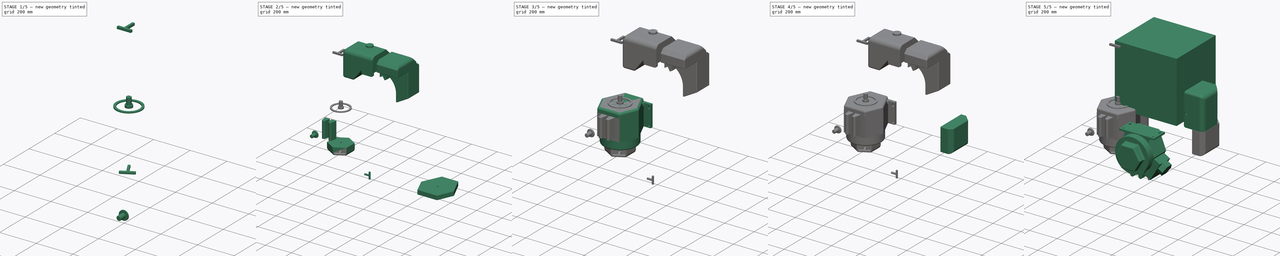
[diagram: build sequence overview — one tinted view per stage of 5, left to right]
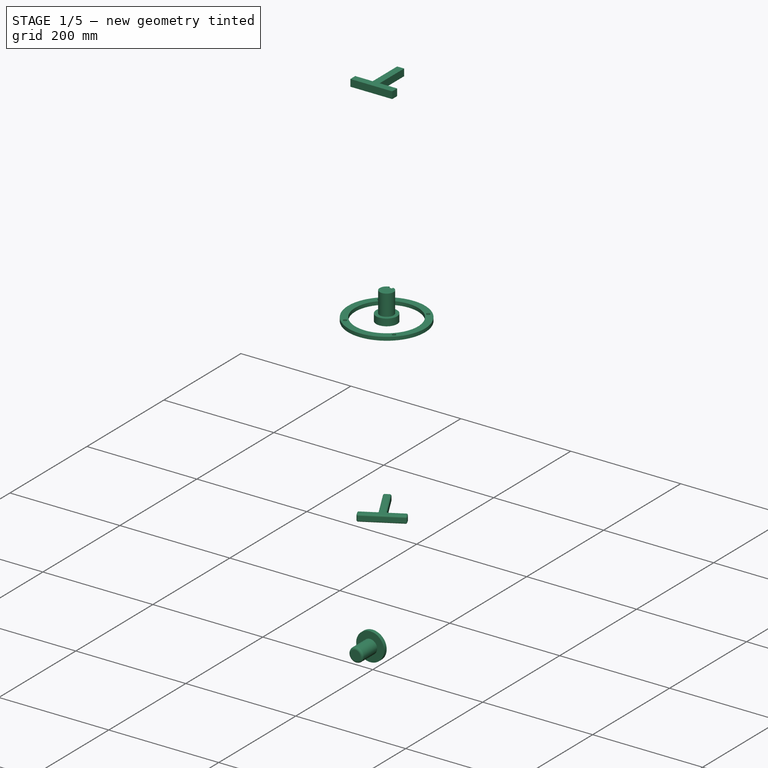
[diagram: stage 1 of 5 — iso view after this stage's code; geometry added in this stage tinted green]
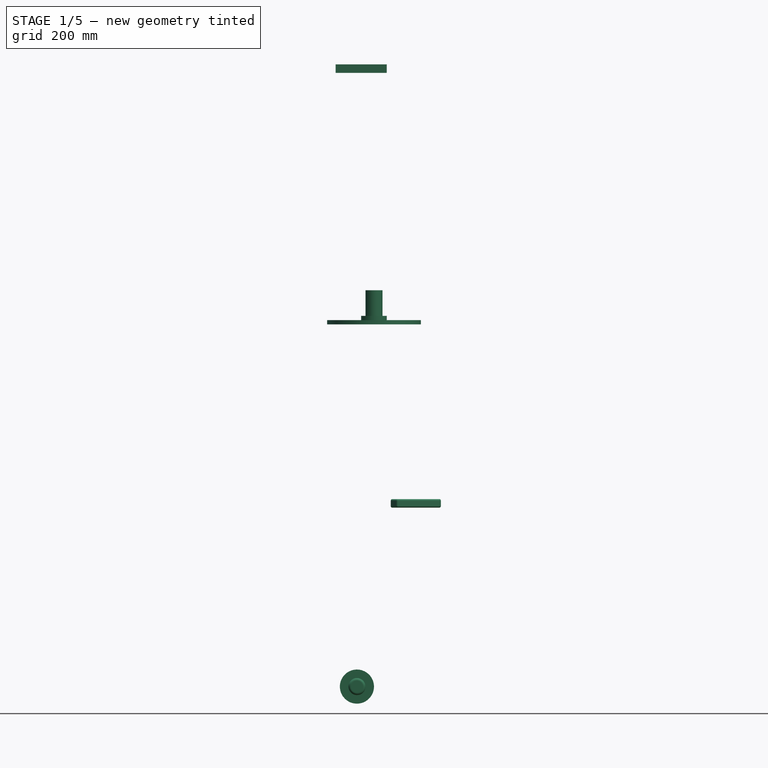
[diagram: stage 1 of 5 — front view after this stage's code; geometry added in this stage tinted green]
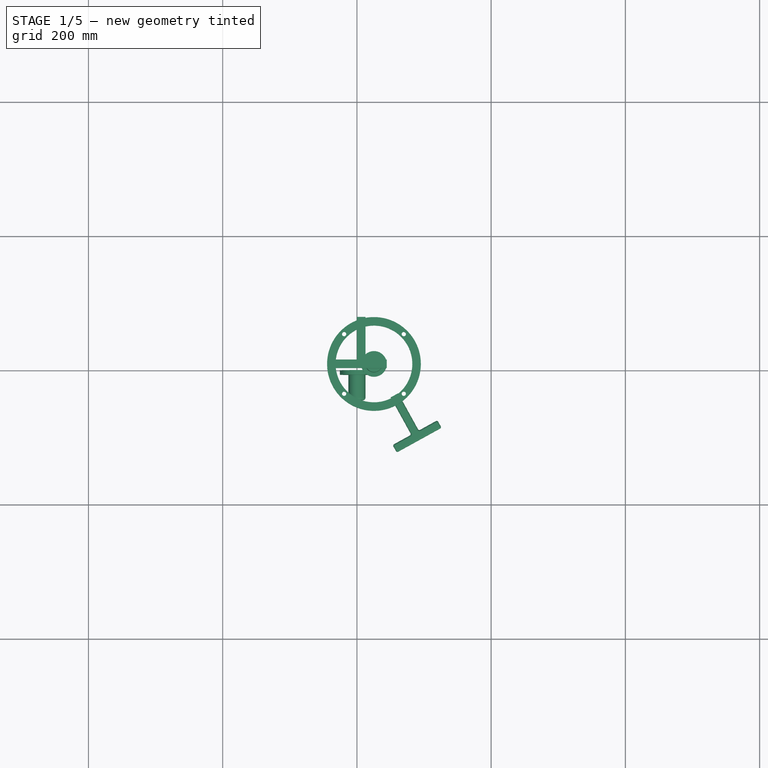
[diagram: stage 1 of 5 — top view after this stage's code; geometry added in this stage tinted green]
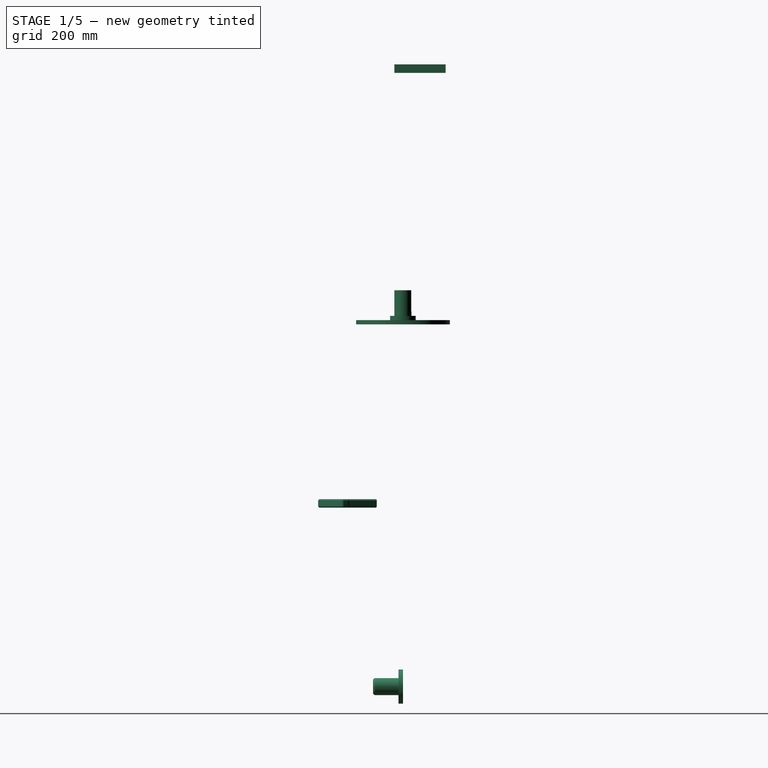
[diagram: stage 1 of 5 — right view after this stage's code; geometry added in this stage tinted green]
FCSTD DOCUMENT  (FreeCAD 0.16R6712 (Git))
Label: Xp16hp
License: All rights reserved
LicenseURL: http://en.wikipedia.org/wiki/All_rights_reserved
objects: App::FeaturePython×26, Sketcher::SketchObject×21, PartDesign::Pad×18, Part::FeaturePython×12, PartDesign::Fillet×9, Part::Feature×9, Part::Compound×5, Part::Fillet×5, Part::Cylinder×5, PartDesign::Chamfer×4, Part::Box×3, PartDesign::Pocket×2, PartDesign::Revolution×1, Part::MultiFuse×1
note: 116 computed .brp shape members not serialized (recipe doc carries the construction recipe); baked Part::Feature solids carry a one-line shape summary decoded from their .brp

FEATURE [Sketcher::SketchObject] Sketch
  Placement = pos=(177.8,0,0) rot=(0.57735,0.57735,0.57735;2.0944rad)
  sketch-geometry (7):
    g0: LineSegment [constr] StartX=0 StartY=127 StartZ=0 EndX=500 EndY=127 EndZ=0
    g1: LineSegment StartX=0 StartY=127 StartZ=0 EndX=0 EndY=114.3 EndZ=0
    g2: LineSegment StartX=0 StartY=114.3 StartZ=0 EndX=38.1 EndY=114.3 EndZ=0
    g3: LineSegment StartX=0 StartY=127 StartZ=0 EndX=50.8 EndY=127 EndZ=0
    g4: LineSegment StartX=38.1 StartY=114.3 StartZ=0 EndX=38.1 EndY=107.95 EndZ=0
    g5: LineSegment StartX=38.1 StartY=107.95 StartZ=0 EndX=50.8 EndY=107.95 EndZ=0
    g6: LineSegment StartX=50.8 StartY=107.95 StartZ=0 EndX=50.8 EndY=127 EndZ=0
  constraints (23):
    c: Horizontal(g0)
    c: PointOnObject(g0,g-2)
    c: DistanceY(g-1,g0) = 127
    c: Coincident(g1,g0)
    c: PointOnObject(g1,g-2)
    c: Coincident(g1,g2)
    c: Horizontal(g2)
    c: PointOnObject(g3,g0)
    c: Coincident(g3,g0)
    c: Horizontal(g3)
    c: DistanceY(g1,g0) = 12.7
    c: DistanceX(g2,g2) = 38.1
    c: Coincident(g4,g2)
    c: Vertical(g4)
    c: Coincident(g5,g4)
    c: Horizontal(g5)
    c: Coincident(g6,g5)
    c: PointOnObject(g6,g0)
    c: Vertical(g6)
    c: Coincident(g6,g3)
    c: DistanceY(g4,g4) = 6.35
    c: DistanceX(g5,g5) = 12.7
    c: DistanceX(g0,g0) = 500
FEATURE [PartDesign::Revolution] Revolution  label="Output Shaft Revolve"
  Angle = 360
  Axis = (0,500,0)
  Base = (177.8,0,127)
  Placement = pos=(177.8,0,0) rot=(0.57735,0.57735,0.57735;2.0944rad)
  ReferenceAxis = -> Sketch [Axis0]
  Reversed = true
  Sketch = -> Sketch
FEATURE [Sketcher::SketchObject] Sketch001
  ExternalGeometry = -> [Revolution]
  Placement = pos=(177.8,0,0) rot=(-0.57735,-0.57735,0.57735;4.18879rad)
  Support = -> Revolution [Face1]
  sketch-geometry (4):
    g0: LineSegment StartX=-139.7 StartY=3.175 StartZ=0 EndX=-139.7 EndY=-3.175 EndZ=0
    g1: LineSegment StartX=-139.7 StartY=-3.175 StartZ=0 EndX=-136.093 EndY=-3.175 EndZ=0
    g2: LineSegment StartX=-136.093 StartY=-3.175 StartZ=0 EndX=-136.093 EndY=3.175 EndZ=0
    g3: LineSegment StartX=-136.093 StartY=3.175 StartZ=0 EndX=-139.7 EndY=3.175 EndZ=0
  constraints (12):
    c: Vertical(g0)
    c: Tangent(g0,g-3)
    c: Coincident(g1,g0)
    c: Horizontal(g1)
    c: Coincident(g2,g1)
    c: Vertical(g2)
    c: Coincident(g3,g2)
    c: Coincident(g3,g0)
    c: Horizontal(g3)
    c: Symmetric(g0,g0,g-1)
    c: DistanceY(g2,g2) = 6.35
    c: DistanceX(g3,g3) = 3.6068
FEATURE [PartDesign::Pocket] Pocket  label="Output Shaft with Keyway"
  Length = 31.75
  Placement = pos=(177.8,0,0) rot=(0.57735,0.57735,0.57735;2.0944rad)
  Sketch = -> Sketch001
  Type = 0
  UpToFace = -> Revolution [Face1]
FEATURE [App::FeaturePython] planeConstraint03  label="mnt pnts front to back"  # a2plus constraint (typed FeaturePython)
  Object1 = Clone013
  Object2 = Clone004
  SubElement1 = Face6
  SubElement2 = Face8
  Type = plane
  directionConstraint = 0
  offset = 19.05
FEATURE [App::FeaturePython] planeConstraint04  label="tank mount points vert"  # a2plus constraint (typed FeaturePython)
  Object1 = Clone013
  Object2 = Clone004
  SubElement1 = Face1
  SubElement2 = Face4
  Type = plane
  directionConstraint = 0
  offset = 0
FEATURE [App::FeaturePython] planeConstraint05  label="planeConstraint05_tank mount points"  # a2plus constraint (typed FeaturePython)
  Object1 = Clone013
  Object2 = Clone004
  SubElement1 = Face10
  SubElement2 = Vertex10
  Type = plane
  directionConstraint = 0
  offset = -82.55
FEATURE [App::FeaturePython] planeConstraint06  label="cyl head cap position"  # a2plus constraint (typed FeaturePython)
  Object1 = Pad001001
  Object2 = Clone004
  SubElement1 = Face5
  SubElement2 = Face5
  Type = plane
  directionConstraint = 1
  offset = -50.8
FEATURE [App::FeaturePython] planeConstraint07  label="planeConstraint07_cylinder head"  # a2plus constraint (typed FeaturePython)
  Object1 = Pad001001
  Object2 = Clone004
  SubElement1 = Face2
  SubElement2 = Face8
  Type = plane
  directionConstraint = 0
  offset = 19.05
FEATURE [App::FeaturePython] planeConstraint08  # a2plus constraint (typed FeaturePython)
  Object1 = Pad001001
  Object2 = Clone004
  SubElement1 = Face1
  SubElement2 = Vertex10
  Type = plane
  directionConstraint = 0
  offset = -25.4
FEATURE [App::FeaturePython] planeConstraint12  label="xyl head cap to cyl head"  # a2plus constraint (typed FeaturePython)
  Object1 = Pad002001
  Object2 = Pad001001
  SubElement1 = Face7
  SubElement2 = Face5
  Type = plane
  directionConstraint = 0
  offset = 0
FEATURE [App::FeaturePython] planeConstraint13  label="cyl head cap vert"  # a2plus constraint (typed FeaturePython)
  Object1 = Pad002001
  Object2 = Pad001001
  SubElement1 = Face5
  SubElement2 = Face1
  Type = plane
  directionConstraint = 0
  offset = 50.8
FEATURE [App::FeaturePython] planeConstraint14  label="cyl head cap fronto back"  # a2plus constraint (typed FeaturePython)
  Object1 = Pad001001
  Object2 = Pad002001
  SubElement1 = Face4
  SubElement2 = Vertex1
  Type = plane
  directionConstraint = 0
  offset = -6.35
FEATURE [Part::Cylinder] Cylinder003  label="fuel tank breather base"
  Angle = 360
  Height = 6.604
  Placement = pos=(0,0,-508) rot=(1,0,0;1.5708rad)
  Radius = 25.4
FEATURE [Part::Cylinder] Cylinder004  label="Cylinder"
  Angle = 360
  Height = 38.1
  Placement = pos=(-355.6,457.2,-101.6) rot=(1,0,0;1.5708rad)
  Radius = 12.7
FEATURE [Part::Fillet] Fillet012
  Base = -> Cylinder004
  Edges = 1 edges r=3.81: [Edge1]
  Placement = pos=(355.6,-463.804,-406.4) rot=(0,0,1;0rad)
FEATURE [Part::Feature] Compound002002002003  label="Air Filter Cover Assembly"
  Placement = pos=(185.075,110.897,69.85) rot=(0,0.707107,-0.707107;3.14159rad)
  shape: bbox 165.4 x 320.6 x 245 mm, 74 faces, 4 solids (baked)
FEATURE [Part::Feature] Compound002002002004  label="Gas Tank"
  Placement = pos=(199.442,127.831,95.25) rot=(0,0.707107,-0.707107;3.14159rad)
  shape: bbox 235.7 x 213.7 x 200 mm, 37 faces, 2 solids (baked)
FEATURE [App::FeaturePython] planeConstraint09  label="tank mount to mount points"  # a2plus constraint (typed FeaturePython)
  Object1 = Compound002002002004
  Object2 = Clone013
  SubElement1 = Face27
  SubElement2 = Face5
  Type = plane
  directionConstraint = 1
  offset = 0
FEATURE [App::FeaturePython] planeConstraint10  label="tank side to mounting base side"  # a2plus constraint (typed FeaturePython)
  Object1 = Compound002002002004
  Object2 = Clone007
  SubElement1 = Face17
  SubElement2 = Face2
  Type = plane
  directionConstraint = 0
  offset = -82.55
FEATURE [App::FeaturePython] planeConstraint11  label="tank mount bottom to body top"  # a2plus constraint (typed FeaturePython)
  Object1 = Compound002002002004
  Object2 = Clone004
  SubElement1 = Face22
  SubElement2 = Face4
  Type = plane
  directionConstraint = 1
  offset = -25.4
FEATURE [App::FeaturePython] planeConstraint15  label="breather cap to tank top corner"  # a2plus constraint (typed FeaturePython)
  Object1 = Clone014
  Object2 = Compound002002002004
  SubElement1 = Face3
  SubElement2 = Vertex4
  Type = plane
  directionConstraint = 0
  offset = 0
FEATURE [App::FeaturePython] planeConstraint16  label="Cover assembly side to side of mount base"  # a2plus constraint (typed FeaturePython)
  Object1 = Compound002002002003
  Object2 = Clone007
  SubElement1 = Face10
  SubElement2 = Face4
  Type = plane
  directionConstraint = 0
  offset = -127
FEATURE [App::FeaturePython] planeConstraint17  label="underside of cover asy to top of body"  # a2plus constraint (typed FeaturePython)
  Object1 = Compound002002002003
  Object2 = Clone004
  SubElement1 = Face68
  SubElement2 = Face4
  Type = plane
  directionConstraint = 1
  offset = -76.2
FEATURE [App::FeaturePython] planeConstraint18  label="Cover asy back side to back of main body"  # a2plus constraint (typed FeaturePython)
  Object1 = Compound002002002003
  Object2 = Clone004
  SubElement1 = Face63
  SubElement2 = Face9
  Type = plane
  directionConstraint = 0
  offset = -25.4
FEATURE [Part::Box] Box001  label="Cube"
  Height = 12.7
  Length = 12.7
  Placement = pos=(0,0,406.4) rot=(0,0,1;0rad)
  Width = 63.5
FEATURE [Part::Box] Box002  label="Cube001"
  Height = 12.7
  Length = 76.2
  Placement = pos=(-31.75,-12.7,406.4) rot=(0,0,1;0rad)
  Width = 12.7
FEATURE [Part::MultiFuse] Fusion
  Shapes = -> [Box002,Box001]
FEATURE [Part::Feature] Fusion001  label="square handle"
  shape: bbox 76.2 x 76.2 x 12.7 mm, 10 faces (baked)
FEATURE [Part::Fillet] Fillet013  label="pull start handle"
  Base = -> Fusion001
  Edges = 20 edges r=2.54: [Edge1,Edge2,Edge3,Edge4,Edge5,Edge6,Edge7,Edge8,Edge9,Edge10,Edge11,Edge12,Edge13,Edge14,Edge15,Edge16,Edge17,Edge18,Edge23,Edge24]
FEATURE [Part::FeaturePython] Clone015  label="Clone of pull start handle"  # Draft clone (typed FeaturePython)
  Objects = -> [Fillet013]
  Placement = pos=(81.0093,-100.763,-647.7) rot=(0,0,1;0.504286rad)
  Scale = (1,1,1)
FEATURE [App::FeaturePython] planeConstraint19  label="Handle base to recoil cover"  # a2plus constraint (typed FeaturePython)
  Object1 = Clone015
  Object2 = Clone012
  SubElement1 = Face17
  SubElement2 = Face2
  Type = plane
  directionConstraint = 0
  offset = 25.4
FEATURE [App::FeaturePython] planeConstraint20  label="handle"  # a2plus constraint (typed FeaturePython)
  Object1 = Clone015
  Object2 = Clone002
  SubElement1 = Face11
  SubElement2 = Face4
  Type = plane
  directionConstraint = 0
  offset = -19.05
FEATURE [Part::FeaturePython] Clone016  label="Clone of Output Shaft with Keyway"  # Draft clone (typed FeaturePython)
  Objects = -> [Pocket]
  Placement = pos=(25.3999,-127,82.55) rot=(0,1,0;1.5708rad)
  Scale = (1,1,1)
FEATURE [App::FeaturePython] circularEdgeConstraint01  # a2plus constraint (typed FeaturePython)
  Object1 = Clone016
  Object2 = Clone011
  SubElement1 = Edge18
  SubElement2 = Edge42
  Type = circularEdge
  directionConstraint = 1
  lockRotation = false
  offset = 0
FEATURE [Sketcher::SketchObject] Sketch023  label="rear bolt pattern"
  Placement = pos=(0,0,508) rot=(0,0,1;0rad)
  sketch-geometry (10):
    g0: LineSegment [constr] StartX=-44.45 StartY=44.45 StartZ=0 EndX=44.45 EndY=44.45 EndZ=0
    g1: LineSegment [constr] StartX=44.45 StartY=44.45 StartZ=0 EndX=44.45 EndY=-44.45 EndZ=0
    g2: LineSegment [constr] StartX=44.45 StartY=-44.45 StartZ=0 EndX=-44.45 EndY=-44.45 EndZ=0
    g3: LineSegment [constr] StartX=-44.45 StartY=-44.45 StartZ=0 EndX=-44.45 EndY=44.45 EndZ=0
    g4: Circle CenterX=0 CenterY=0 CenterZ=0 NormalX=0 NormalY=0 NormalZ=1 Radius=57.15
    g5: Circle CenterX=0 CenterY=0 CenterZ=0 NormalX=0 NormalY=0 NormalZ=1 Radius=69.85
    g6: Circle CenterX=-44.45 CenterY=-44.45 CenterZ=0 NormalX=0 NormalY=0 NormalZ=1 Radius=3.175
    g7: Circle CenterX=44.45 CenterY=-44.45 CenterZ=0 NormalX=0 NormalY=0 NormalZ=1 Radius=3.175
    g8: Circle CenterX=44.45 CenterY=44.45 CenterZ=0 NormalX=0 NormalY=0 NormalZ=1 Radius=3.175
    g9: Circle CenterX=-44.45 CenterY=44.45 CenterZ=0 NormalX=0 NormalY=0 NormalZ=1 Radius=3.175
  constraints (25):
    c: Coincident(g0,g1)
    c: Coincident(g1,g2)
    c: Coincident(g2,g3)
    c: Coincident(g3,g0)
    c: Horizontal(g0)
    c: Horizontal(g2)
    c: Vertical(g1)
    c: Vertical(g3)
    c: Equal(g1,g0)
    c: Equal(g0,g3)
    c: Equal(g3,g2)
    c: Symmetric(g0,g2,g-1)
    c: DistanceX(g0,g0) = 88.9
    c: Coincident(g4,g-1)
    c: Radius(g4) = 57.15
    c: Coincident(g5,g-1)
    c: Radius(g5) = 69.85
    c: Coincident(g6,g2)
    c: Coincident(g7,g1)
    c: Coincident(g8,g0)
    c: Coincident(g9,g0)
    c: Equal(g9,g8)
    c: Equal(g8,g7)
    c: Equal(g7,g6)
    c: Radius(g6) = 3.175
FEATURE [PartDesign::Pad] Pad002005  label="Load mount bolt pattern"
  Length = 6.35
  Length2 = 100
  Placement = pos=(0,0,508) rot=(0,0,1;0rad)
  Sketch = -> Sketch023
  Type = 0
FEATURE [Part::FeaturePython] Clone017  label="Clone of Load mount bolt pattern"  # Draft clone (typed FeaturePython)
  Objects = -> [Pad002005]
  Placement = pos=(25.3999,0,31.75) rot=(0,0,1;0rad)
  Scale = (1,1,1)
FEATURE [App::FeaturePython] circularEdgeConstraint06  # a2plus constraint (typed FeaturePython)
  Object1 = Clone017
  Object2 = Clone011
  SubElement1 = Edge5
  SubElement2 = Edge42
  Type = circularEdge
  directionConstraint = 1
  lockRotation = true
  offset = 0
FEATURE [Part::Feature] Compound002002002005001  label="Xp16HP_Engine_Simple"
  shape: bbox 432.2 x 482.5 x 355.6 mm, 282 faces, 22 solids (baked)
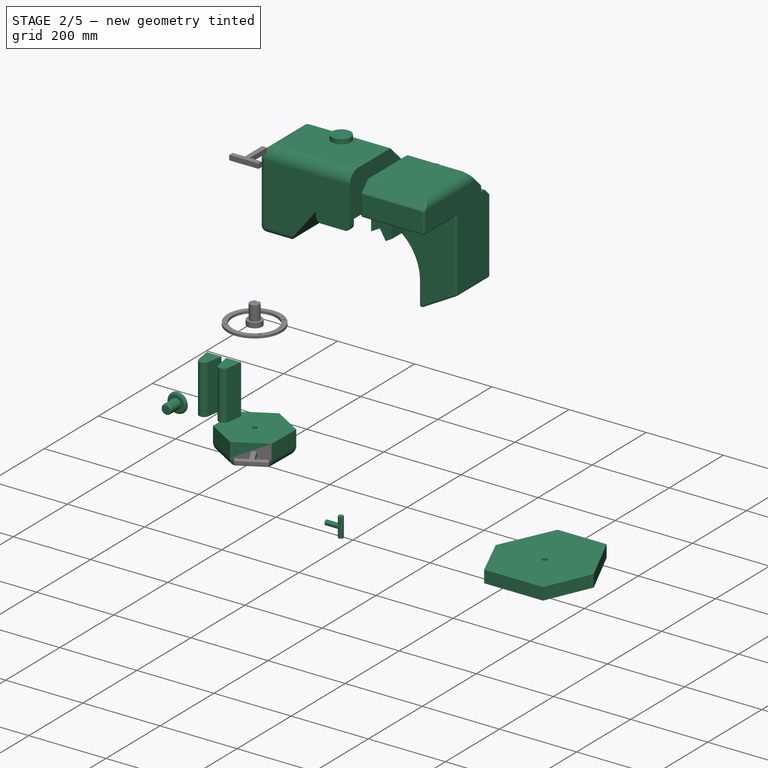
[diagram: stage 2 of 5 — iso view after this stage's code; geometry added in this stage tinted green]
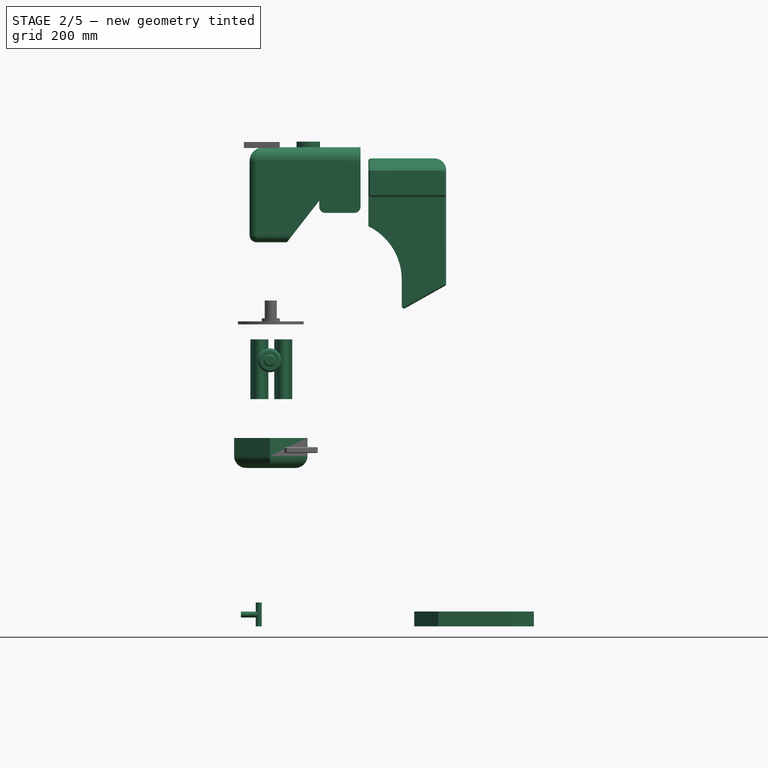
[diagram: stage 2 of 5 — front view after this stage's code; geometry added in this stage tinted green]
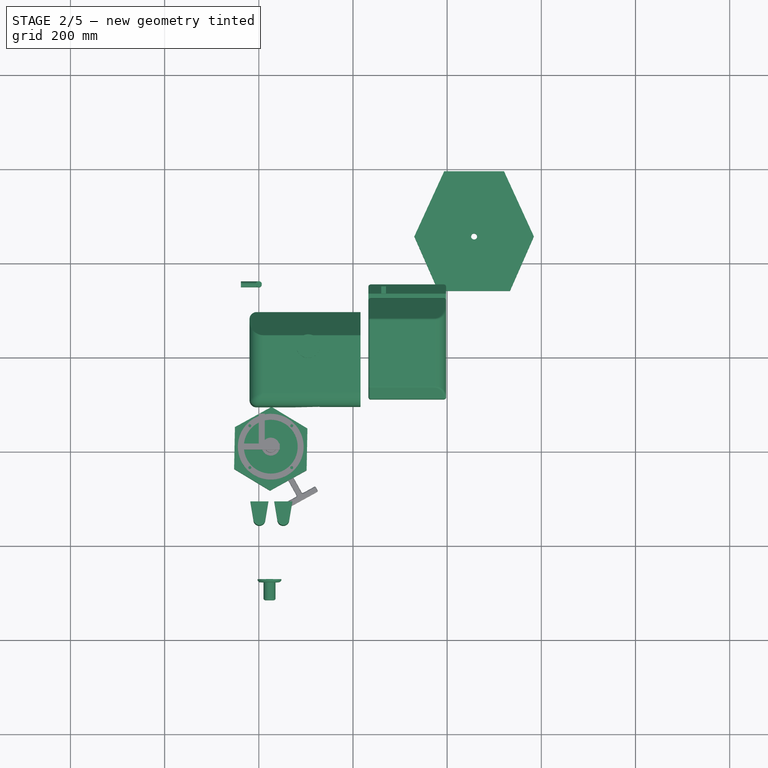
[diagram: stage 2 of 5 — top view after this stage's code; geometry added in this stage tinted green]
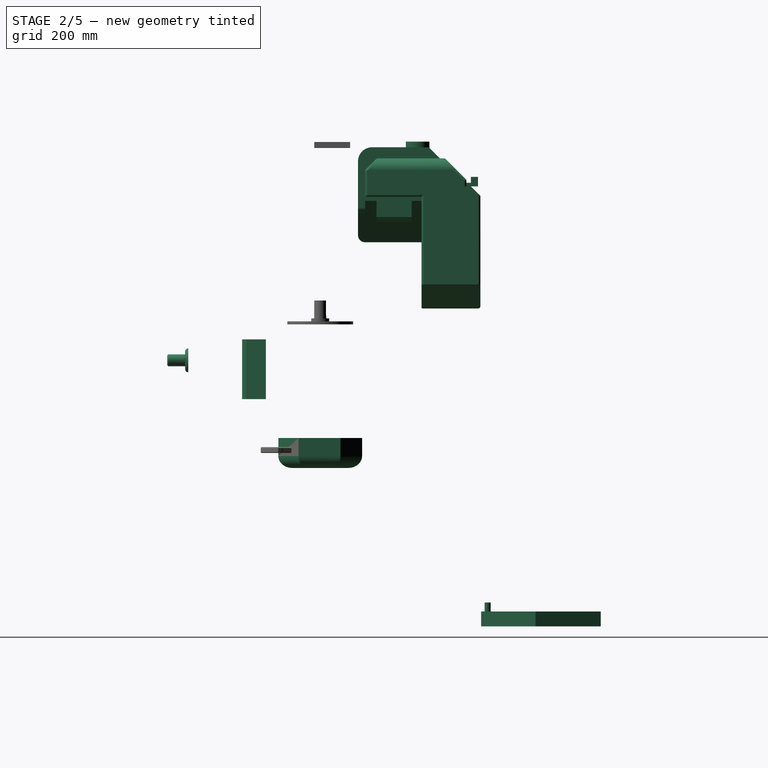
[diagram: stage 2 of 5 — right view after this stage's code; geometry added in this stage tinted green]
FEATURE [Sketcher::SketchObject] Sketch013
  Placement = pos=(313.893,0,-0.245229) rot=(0.577572,-0.577572,0.576906;4.18812rad)
  sketch-geometry (8):
    g0: LineSegment StartX=76.9897 StartY=44.45 StartZ=0 EndX=0 EndY=88.9 EndZ=0
    g1: LineSegment StartX=0 StartY=88.9 StartZ=0 EndX=-76.9897 EndY=44.45 EndZ=0
    g2: LineSegment StartX=-76.9897 StartY=44.45 StartZ=0 EndX=-76.9897 EndY=-44.45 EndZ=0
    g3: LineSegment StartX=-76.9897 StartY=-44.45 StartZ=0 EndX=0 EndY=-88.9 EndZ=0
    g4: LineSegment StartX=0 StartY=-88.9 StartZ=0 EndX=76.9897 EndY=-44.45 EndZ=0
    g5: LineSegment StartX=76.9897 StartY=-44.45 StartZ=0 EndX=76.9897 EndY=44.45 EndZ=0
    g6: Circle [constr] CenterX=0 CenterY=0 CenterZ=0 NormalX=0 NormalY=0 NormalZ=1 Radius=88.9
    g7: Circle CenterX=0 CenterY=0 CenterZ=0 NormalX=0 NormalY=0 NormalZ=1 Radius=6.35
  constraints (18):
    c: Coincident(g0,g1)
    c: Coincident(g1,g2)
    c: Coincident(g2,g3)
    c: Coincident(g3,g4)
    c: Coincident(g4,g5)
    c: Coincident(g5,g0)
    c: Equal(g0, g1-g5) x5
    c: PointOnObject(g0,g6)
    c: PointOnObject(g1,g6)
    c: PointOnObject(g2,g6)
    c: PointOnObject(g3,g6)
    c: PointOnObject(g4,g6)
    c: PointOnObject(g5,g6)
    c: Coincident(g6,g-1)
    c: PointOnObject(g0,g-2)
    c: DistanceY(g5,g5) = 88.9
    c: Coincident(g7,g-1)
    c: Radius(g7) = 6.35
FEATURE [PartDesign::Pad] Pad009  label="Recoil Cover"
  Length = 63.5
  Length2 = 100
  Placement = pos=(313.893,0,-0.245229) rot=(0.577572,-0.577572,0.576906;4.18812rad)
  Sketch = -> Sketch013
  Type = 0
FEATURE [Part::Feature] Pad001001  label="Cylinder Head001"
  Placement = pos=(-63.6365,-212.425,84.822) rot=(-0.201543,0.95852,0.201543;1.61315rad)
  shape: bbox 103.6 x 150.2 x 105.6 mm, 6 faces (baked)
FEATURE [Part::Feature] Pad002001  label="Cylinder Head Cap001"
  Placement = pos=(6.5431,124.532,16.4146) rot=(0.255205,-0.166529,0.952438;2.02944rad)
  shape: bbox 66.41 x 87.02 x 90.42 mm, 8 faces (baked)
FEATURE [Sketcher::SketchObject] Sketch020  label="engine back face pattern"
  Placement = pos=(457.2,457.2,-609.6) rot=(0,0,1;0rad)
  sketch-geometry (8):
    g0: LineSegment StartX=-63.5 StartY=138.541 StartZ=0 EndX=63.5 EndY=138.541 EndZ=0
    g1: LineSegment StartX=63.5 StartY=138.541 StartZ=0 EndX=127 EndY=0 EndZ=0
    g2: LineSegment StartX=127 StartY=0 StartZ=0 EndX=76.2 EndY=-115.459 EndZ=0
    g3: LineSegment StartX=76.2 StartY=-115.459 StartZ=0 EndX=-76.2 EndY=-115.459 EndZ=0
    g4: LineSegment StartX=-76.2 StartY=-115.459 StartZ=0 EndX=-127 EndY=0 EndZ=0
    g5: LineSegment StartX=-127 StartY=0 StartZ=0 EndX=-63.5 EndY=138.541 EndZ=0
    g6: LineSegment [constr] StartX=-127 StartY=0 StartZ=0 EndX=127 EndY=0 EndZ=0
    g7: Circle CenterX=0 CenterY=0 CenterZ=0 NormalX=0 NormalY=0 NormalZ=1 Radius=6.35
  constraints (23):
    c: Horizontal(g0)
    c: Coincident(g1,g0)
    c: Coincident(g2,g1)
    c: Coincident(g3,g2)
    c: Horizontal(g3)
    c: Coincident(g4,g3)
    c: Coincident(g5,g4)
    c: Coincident(g5,g0)
    c: Coincident(g6,g4)
    c: Coincident(g6,g1)
    c: Horizontal(g6)
    c: DistanceX(g3,g3) = 152.4
    c: PointOnObject(g4,g-1)
    c: Equal(g2,g4)
    c: Symmetric(g2,g3,g-2)
    c: DistanceX(g6,g6) = 254
    c: DistanceX(g0,g0) = 127
    c: Symmetric(g0,g0,g-2)
    c: DistanceY(g3,g0) = 254
    c: Equal(g5,g1)
    c: Equal(g1,g3)
    c: Coincident(g7,g-1)
    c: Radius(g7) = 6.35
FEATURE [PartDesign::Pad] Pad002002  label="back face"
  Length = 31.75
  Length2 = 100
  Placement = pos=(457.2,457.2,-609.6) rot=(0,0,1;0rad)
  Sketch = -> Sketch020
  Type = 0
FEATURE [App::FeaturePython] circularEdgeConstraint03  # a2plus constraint (typed FeaturePython)
  Object1 = Clone011
  Object2 = Clone004
  SubElement1 = Edge16
  SubElement2 = Edge21
  Type = circularEdge
  directionConstraint = 1
  lockRotation = false
  offset = 0
FEATURE [App::FeaturePython] circularEdgeConstraint02  # a2plus constraint (typed FeaturePython)
  Object1 = Clone002
  Object2 = Clone004
  SubElement1 = Edge6
  SubElement2 = Edge20
  Type = circularEdge
  directionConstraint = 1
  lockRotation = false
  offset = 0
FEATURE [PartDesign::Fillet] Fillet010  label="recoil cover Fillet010"
  Base = -> Pad009 [Edge4,Edge18,Edge16,Edge13,Edge10,Edge7]
  Placement = pos=(313.893,0,-0.245229) rot=(0.577572,-0.577572,0.576906;4.18812rad)
  Radius = 25.4
FEATURE [Part::FeaturePython] Clone012  label="Clone of Recoil cover"  # Draft clone (typed FeaturePython)
  Objects = -> [Fillet010]
  Placement = pos=(25.3999,0,-209.55) rot=(-0.491614,0.870813,0;3.14159rad)
  Scale = (1,1,1)
FEATURE [App::FeaturePython] circularEdgeConstraint04  # a2plus constraint (typed FeaturePython)
  Object1 = Clone012
  Object2 = Clone002
  SubElement1 = Edge15
  SubElement2 = Edge7
  Type = circularEdge
  directionConstraint = 0
  lockRotation = false
  offset = 0
FEATURE [App::FeaturePython] planeConstraint02  label="Base to Body side"  # a2plus constraint (typed FeaturePython)
  Object1 = Clone007
  Object2 = Clone004
  SubElement1 = Face4
  SubElement2 = Vertex1
  Type = plane
  directionConstraint = 0
  offset = -47.625
FEATURE [Part::Compound] Compound002002  label="Top Assembly Air Filter-Gas Tank"
  Links = -> [Compound001,Compound002001]
FEATURE [Part::Cylinder] Cylinder001  label="Handle Top Cylinder"
  Angle = 360
  Height = 50.8
  Placement = pos=(0,355.6,-609.6) rot=(0,0,1;0rad)
  Radius = 6.35
FEATURE [Part::Cylinder] Cylinder002  label="Handle Cylinder"
  Angle = 360
  Height = 38.1
  Placement = pos=(-38.1,355.6,-584.2) rot=(0,1,0;1.5708rad)
  Radius = 6.35
FEATURE [Part::Compound] Compound002002002  label="Pull Start Handle"
  Links = -> [Cylinder001,Cylinder002]
FEATURE [Sketcher::SketchObject] Sketch022
  Placement = pos=(0,0,762) rot=(0,0,1;0rad)
  sketch-geometry (10):
    g0: LineSegment StartX=-44.45 StartY=0 StartZ=0 EndX=-6.35 EndY=0 EndZ=0
    g1: LineSegment StartX=-6.35 StartY=0 StartZ=0 EndX=-12.7 EndY=-37.5671 EndZ=0
    g2: LineSegment StartX=-44.45 StartY=0 StartZ=0 EndX=-38.1 EndY=-37.5671 EndZ=0
    g3: ArcOfCircle CenterX=-25.4 CenterY=-37.5671 CenterZ=0 NormalX=0 NormalY=0 NormalZ=1 Radius=12.7 StartAngle=3.14159 EndAngle=6.28319
    g4: LineSegment [constr] StartX=-38.1 StartY=-37.5671 StartZ=0 EndX=-12.7 EndY=-37.5671 EndZ=0
    g5: LineSegment StartX=6.35 StartY=0 StartZ=0 EndX=44.45 EndY=0 EndZ=0
    g6: LineSegment StartX=44.45 StartY=0 StartZ=0 EndX=38.1 EndY=-37.5671 EndZ=0
    g7: LineSegment StartX=6.35 StartY=0 StartZ=0 EndX=12.7 EndY=-37.5671 EndZ=0
    g8: ArcOfCircle CenterX=25.4 CenterY=-37.5671 CenterZ=0 NormalX=0 NormalY=0 NormalZ=1 Radius=12.7 StartAngle=3.14159 EndAngle=6.28319
    g9: LineSegment [constr] StartX=12.7 StartY=-37.5671 StartZ=0 EndX=38.1 EndY=-37.5671 EndZ=0
  constraints (30):
    c: Horizontal(g0)
    c: Coincident(g1,g0)
    c: Coincident(g2,g0)
    c: Coincident(g3,g2)
    c: Coincident(g3,g1)
    c: Radius(g3) = 12.7
    c: DistanceX(g0,g0) = 38.1
    c: Coincident(g4,g2)
    c: Coincident(g4,g1)
    c: Horizontal(g4)
    c: PointOnObject(g3,g4)
    c: PointOnObject(g0,g-1)
    c: Horizontal(g5)
    c: Coincident(g6,g5)
    c: Coincident(g7,g5)
    c: Coincident(g8,g7)
    c: Coincident(g8,g6)
    c: Coincident(g9,g7)
    c: Coincident(g9,g6)
    c: Horizontal(g9)
    c: PointOnObject(g8,g9)
    c: PointOnObject(g5,g-1)
    c: Symmetric(g8,g3,g-2)
    c: Equal(g4,g9)
    c: DistanceX(g3,g8) = 50.8
    c: Equal(g2,g1)
    c: Equal(g1,g0)
    c: Equal(g0,g7)
    c: Equal(g7,g6)
    c: Equal(g6,g5)
FEATURE [PartDesign::Pad] Pad002004  label="Fuel Tank Mounting Points001"
  Length = 127
  Length2 = 100
  Placement = pos=(0,0,762) rot=(0,0,1;0rad)
  Reversed = true
  Sketch = -> Sketch022
  Type = 0
FEATURE [Part::FeaturePython] Clone013  label="Clone of Fuel Tank Mounting Points001"  # Draft clone (typed FeaturePython)
  Objects = -> [Pad002004]
  Placement = pos=(26.5709,-115.459,0) rot=(0,0,1;0rad)
  Scale = (1,1,1)
FEATURE [Part::Fillet] Fillet011
  Base = -> Cylinder003
  Edges = 1 edges r=6.35: [Edge1]
FEATURE [App::FeaturePython] circularEdgeConstraint05  label="tank breather base to cap"  # a2plus constraint (typed FeaturePython)
  Object1 = Fillet012
  Object2 = Fillet011
  SubElement1 = Edge3
  SubElement2 = Edge5
  Type = circularEdge
  directionConstraint = 0
  lockRotation = false
  offset = 0
FEATURE [Part::Compound] Compound002002002002  label="breather cap"
  Links = -> [Fillet011,Fillet012]
FEATURE [Part::FeaturePython] Clone014  label="Clone of breather cap"  # Draft clone (typed FeaturePython)
  Objects = -> [Compound002002002002]
  Placement = pos=(22.732,-280.16,463.55) rot=(0,0,1;0rad)
  Scale = (1,1,1)
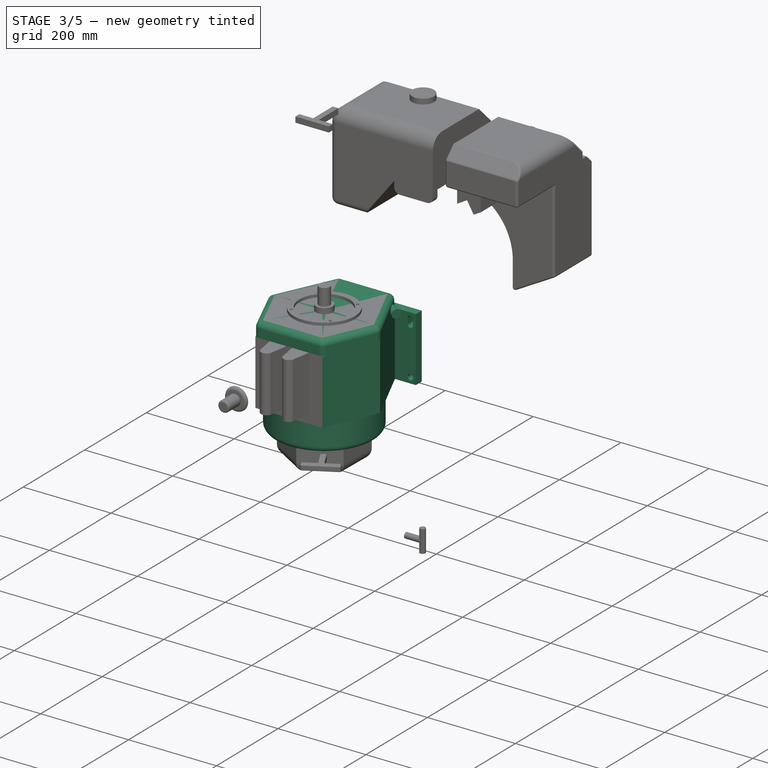
[diagram: stage 3 of 5 — iso view after this stage's code; geometry added in this stage tinted green]
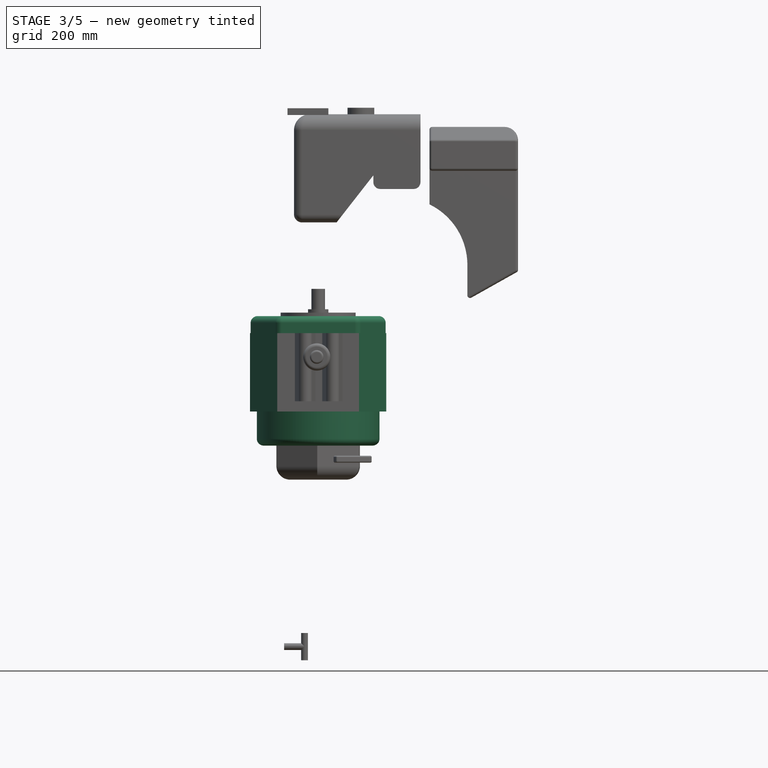
[diagram: stage 3 of 5 — front view after this stage's code; geometry added in this stage tinted green]
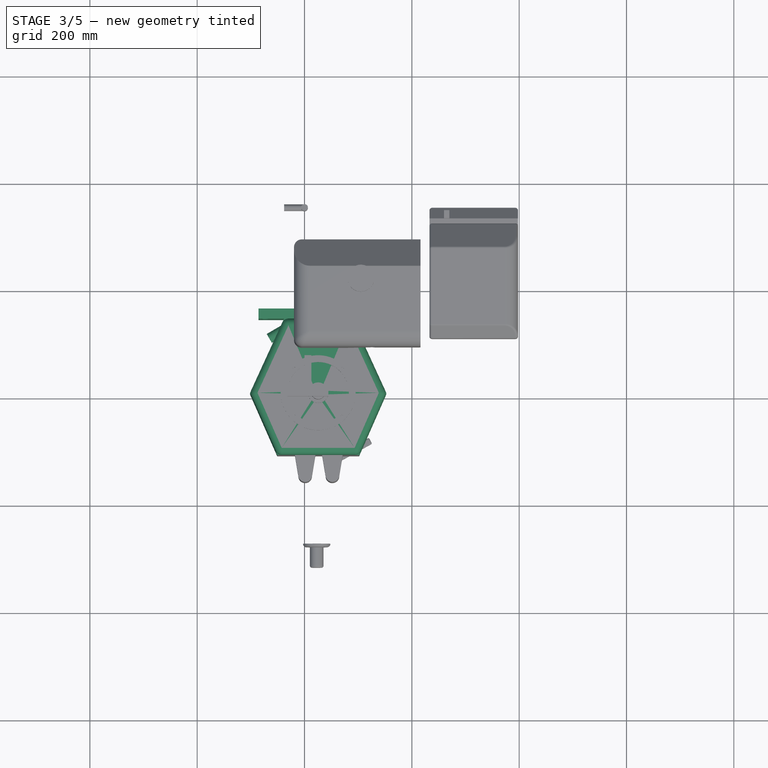
[diagram: stage 3 of 5 — top view after this stage's code; geometry added in this stage tinted green]
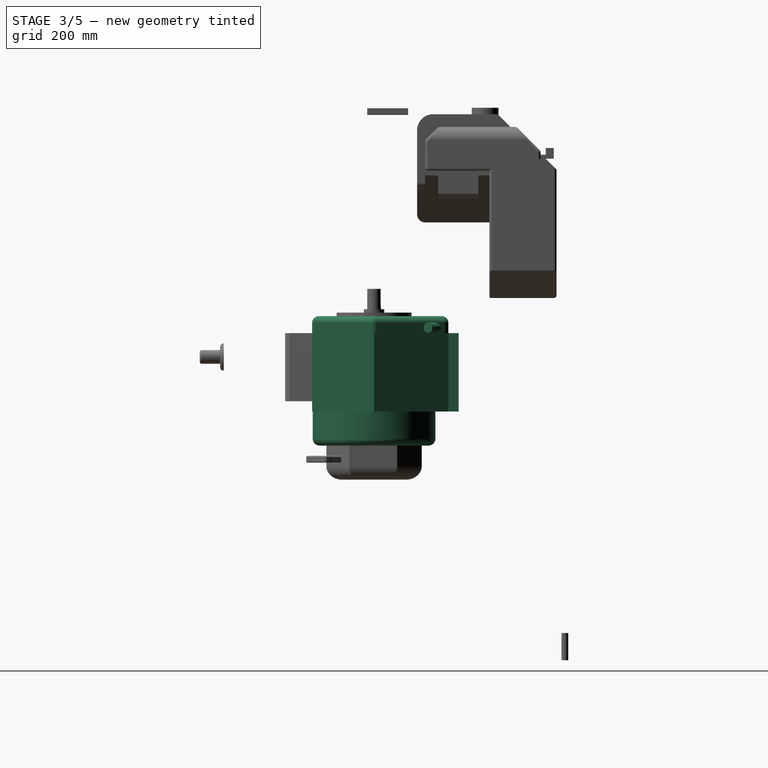
[diagram: stage 3 of 5 — right view after this stage's code; geometry added in this stage tinted green]
FEATURE [Sketcher::SketchObject] Sketch005  label="base pattern"
  Placement = pos=(25.3999,-457.2,-152.488) rot=(0.707107,0.707107,-0.000408;3.14241rad)
  sketch-geometry (18):
    g0: LineSegment StartX=-73.025 StartY=111.125 StartZ=0 EndX=73.025 EndY=111.125 EndZ=0
    g1: LineSegment StartX=73.025 StartY=111.125 StartZ=0 EndX=73.025 EndY=-111.125 EndZ=0
    g2: LineSegment StartX=73.025 StartY=-111.125 StartZ=0 EndX=-73.025 EndY=-111.125 EndZ=0
    g3: LineSegment StartX=-73.025 StartY=-111.125 StartZ=0 EndX=-73.025 EndY=111.125 EndZ=0
    g4: Circle CenterX=60.325 CenterY=-98.425 CenterZ=0 NormalX=0 NormalY=0 NormalZ=1 Radius=6.35
    g5: Circle CenterX=60.325 CenterY=98.425 CenterZ=0 NormalX=0 NormalY=0 NormalZ=1 Radius=6.35
    g6: LineSegment [constr] StartX=60.325 StartY=111.125 StartZ=0 EndX=60.325 EndY=-111.125 EndZ=0
    g7: LineSegment [constr] StartX=-73.025 StartY=98.425 StartZ=0 EndX=73.025 EndY=98.425 EndZ=0
    g8: LineSegment [constr] StartX=-73.025 StartY=-98.425 StartZ=0 EndX=73.025 EndY=-98.425 EndZ=0
    g9: ArcOfCircle CenterX=-60.325 CenterY=98.425 CenterZ=0 NormalX=0 NormalY=0 NormalZ=1 Radius=6.35 StartAngle=1.5708 EndAngle=4.71239
    g10: ArcOfCircle CenterX=-47.625 CenterY=98.425 CenterZ=0 NormalX=0 NormalY=0 NormalZ=1 Radius=6.35 StartAngle=4.71239 EndAngle=7.85398
    g11: LineSegment StartX=-60.325 StartY=92.075 StartZ=0 EndX=-47.625 EndY=92.075 EndZ=0
    g12: LineSegment StartX=-60.325 StartY=104.775 StartZ=0 EndX=-47.625 EndY=104.775 EndZ=0
    g13: ArcOfCircle CenterX=-60.325 CenterY=-98.425 CenterZ=0 NormalX=0 NormalY=0 NormalZ=1 Radius=6.35 StartAngle=1.5708 EndAngle=4.71239
    g14: ArcOfCircle CenterX=-47.625 CenterY=-98.425 CenterZ=0 NormalX=0 NormalY=0 NormalZ=1 Radius=6.35 StartAngle=4.71239 EndAngle=7.85398
    g15: LineSegment StartX=-60.325 StartY=-104.775 StartZ=0 EndX=-47.625 EndY=-104.775 EndZ=0
    g16: LineSegment StartX=-60.325 StartY=-92.075 StartZ=0 EndX=-47.625 EndY=-92.075 EndZ=0
    g17: LineSegment [constr] StartX=-47.625 StartY=111.125 StartZ=0 EndX=-47.625 EndY=-111.125 EndZ=0
  constraints (56):
    c: Coincident(g0,g1)
    c: Coincident(g1,g2)
    c: Coincident(g2,g3)
    c: Coincident(g3,g0)
    c: Horizontal(g0)
    c: Horizontal(g2)
    c: Vertical(g3)
    c: Equal(g0,g2)
    c: Equal(g1,g3)
    c: Symmetric(g0,g2,g-1)
    c: DistanceY(g1,g1) = 222.25
    c: DistanceX(g0,g0) = 146.05
    c: Equal(g5,g4)
    c: PointOnObject(g6,g0)
    c: PointOnObject(g6,g2)
    c: Vertical(g6)
    c: PointOnObject(g4,g6)
    c: Radius(g4) = 6.35
    c: PointOnObject(g7,g3)
    c: PointOnObject(g7,g1)
    c: Horizontal(g7)
    c: PointOnObject(g8,g3)
    c: PointOnObject(g8,g1)
    c: Horizontal(g8)
    c: Tangent(g9,g12) = 1.5708
    c: Tangent(g9,g11) = -1.5708
    c: Tangent(g11,g10) = -1.5708
    c: Tangent(g12,g10) = 1.5708
    c: Horizontal(g11)
    c: Tangent(g13,g16) = 1.5708
    c: Tangent(g13,g15) = -1.5708
    c: Tangent(g15,g14) = -1.5708
    c: Tangent(g16,g14) = 1.5708
    c: Horizontal(g15)
    c: PointOnObject(g17,g0)
    c: PointOnObject(g17,g2)
    c: Vertical(g17)
    c: PointOnObject(g4,g8)
    c: PointOnObject(g13,g8)
    c: PointOnObject(g9,g7)
    c: PointOnObject(g10,g17)
    c: PointOnObject(g14,g17)
    c: Equal(g9,g10)
    c: Equal(g10,g14)
    c: Equal(g14,g13)
    c: Equal(g12,g11)
    c: Equal(g11,g16)
    c: Equal(g16,g15)
    c: Radius(g13) = 6.35
    c: DistanceX(g15,g15) = 12.7
    c: DistanceY(g6,g4) = 12.7
    c: DistanceX(g7,g10) = 25.4
    c: PointOnObject(g5,g6)
    c: PointOnObject(g5,g7)
    c: DistanceX(g5,g7) = 12.7
    c: DistanceY(g5,g6) = 12.7
FEATURE [PartDesign::Pad] Pad003  label="Mounting Base Flange"
  Length = 19.05
  Length2 = 100
  Placement = pos=(25.3999,-457.2,-152.488) rot=(0.707107,0.707107,-0.000408;3.14241rad)
  Reversed = true
  Sketch = -> Sketch005
  Type = 0
FEATURE [Sketcher::SketchObject] Sketch018
  Placement = pos=(265,0,0) rot=(0.57735,0.57735,0.57735;2.0944rad)
  sketch-geometry (6):
    g0: LineSegment StartX=285 StartY=332.5 StartZ=0 EndX=320 EndY=332.5 EndZ=0
    g1: LineSegment StartX=320 StartY=332.5 StartZ=0 EndX=320 EndY=345 EndZ=0
    g2: LineSegment StartX=320 StartY=345 StartZ=0 EndX=335 EndY=345 EndZ=0
    g3: LineSegment StartX=335 StartY=345 StartZ=0 EndX=335 EndY=325 EndZ=0
    g4: LineSegment StartX=335 StartY=325 StartZ=0 EndX=285 EndY=325 EndZ=0
    g5: LineSegment StartX=285 StartY=325 StartZ=0 EndX=285 EndY=332.5 EndZ=0
  constraints (18):
    c: Horizontal(g0)
    c: Coincident(g0,g1)
    c: Coincident(g1,g2)
    c: Horizontal(g2)
    c: Coincident(g2,g3)
    c: Vertical(g3)
    c: Coincident(g3,g4)
    c: Horizontal(g4)
    c: Coincident(g4,g5)
    c: Coincident(g5,g0)
    c: Vertical(g5)
    c: Vertical(g1)
    c: Distance(g2) = 15
    c: Distance(g3) = 20
    c: DistanceX(g3) = 335
    c: DistanceY(g3) = 325
    c: Distance(g4) = 50
    c: Distance(g1) = 12.5
FEATURE [PartDesign::Pad] Pad013  label="Throttle Lever"
  Length = 10
  Length2 = 100
  Midplane = true
  Placement = pos=(265,0,0) rot=(0.57735,0.57735,0.57735;2.0944rad)
  Sketch = -> Sketch018
  Type = 0
FEATURE [Part::Feature] Compound002001  label="air filter assembly"
  shape: bbox 165.4 x 245 x 320.6 mm, 74 faces, 4 solids (baked)
FEATURE [Part::Feature] Pocket003  label="Output Shaft with Keyway001"
  Placement = pos=(177.8,0,0) rot=(0.57735,0.57735,0.57735;2.0944rad)
  shape: bbox 38.1 x 101.6 x 38.1 mm, 9 faces (baked)
FEATURE [Sketcher::SketchObject] Sketch019  label="engine main body pattern"
  sketch-geometry (8):
    g0: LineSegment StartX=-63.5 StartY=138.541 StartZ=0 EndX=63.5 EndY=138.541 EndZ=0
    g1: LineSegment StartX=63.5 StartY=138.541 StartZ=0 EndX=127 EndY=0 EndZ=0
    g2: LineSegment StartX=127 StartY=0 StartZ=0 EndX=76.2 EndY=-115.459 EndZ=0
    g3: LineSegment StartX=76.2 StartY=-115.459 StartZ=0 EndX=-76.2 EndY=-115.459 EndZ=0
    g4: LineSegment StartX=-76.2 StartY=-115.459 StartZ=0 EndX=-127 EndY=0 EndZ=0
    g5: LineSegment StartX=-127 StartY=0 StartZ=0 EndX=-63.5 EndY=138.541 EndZ=0
    g6: LineSegment [constr] StartX=-127 StartY=0 StartZ=0 EndX=127 EndY=0 EndZ=0
    g7: Circle CenterX=0 CenterY=0 CenterZ=0 NormalX=0 NormalY=0 NormalZ=1 Radius=6.35
  constraints (23):
    c: Horizontal(g0)
    c: Coincident(g1,g0)
    c: Coincident(g2,g1)
    c: Coincident(g3,g2)
    c: Horizontal(g3)
    c: Coincident(g4,g3)
    c: Coincident(g5,g4)
    c: Coincident(g5,g0)
    c: Coincident(g6,g4)
    c: Coincident(g6,g1)
    c: Horizontal(g6)
    c: DistanceX(g3,g3) = 152.4
    c: PointOnObject(g4,g-1)
    c: Equal(g2,g4)
    c: Symmetric(g2,g3,g-2)
    c: DistanceX(g6,g6) = 254
    c: DistanceX(g0,g0) = 127
    c: Symmetric(g0,g0,g-2)
    c: DistanceY(g3,g0) = 254
    c: Equal(g5,g1)
    c: Equal(g1,g3)
    c: Coincident(g7,g-1)
    c: Radius(g7) = 6.35
FEATURE [PartDesign::Pad] Pad  label="engine main body"
  Length = 146.05
  Length2 = 100
  Sketch = -> Sketch019
  Type = 0
FEATURE [Part::Fillet] Fillet008
  Base = -> Pad002002
  Edges = 12 edges r=12.7: [Edge1,Edge2,Edge3,Edge5,Edge6,Edge8,Edge9,Edge11,Edge12,Edge14,Edge15,Edge17]
FEATURE [Sketcher::SketchObject] Sketch021  label="front cover base"
  Placement = pos=(0,0,-609.6) rot=(1,0,0;1.5708rad)
  sketch-geometry (2):
    g0: Circle CenterX=0 CenterY=0 CenterZ=0 NormalX=0 NormalY=0 NormalZ=1 Radius=114.3
    g1: Circle CenterX=0 CenterY=0 CenterZ=0 NormalX=0 NormalY=0 NormalZ=1 Radius=6.35
  constraints (4):
    c: Coincident(g0,g-1)
    c: Radius(g0) = 114.3
    c: Coincident(g1,g-1)
    c: Radius(g1) = 6.35
FEATURE [PartDesign::Pad] Pad002003  label="front cover base001"
  Length = 63.5
  Length2 = 100
  Placement = pos=(0,0,-609.6) rot=(1,0,0;1.5708rad)
  Sketch = -> Sketch021
  Type = 0
FEATURE [Part::Fillet] Fillet009
  Base = -> Pad002003
  Edges = 1 edges r=12.7: [Edge3]
FEATURE [Part::Cylinder] Cylinder  label="oil fill"
  Angle = 360
  Height = 50.8
  Placement = pos=(609.6,304.8,304.8) rot=(0,0,1;0rad)
  Radius = 9.525
FEATURE [Part::FeaturePython] Clone  label="Clone of oil fill"  # Draft clone (typed FeaturePython)
  Objects = -> [Cylinder]
  Placement = pos=(-21.7875,127.421,10.16) rot=(0.045548,-0.906744,0.419215;1.78566rad)
  Scale = (1,1,1)
FEATURE [Part::FeaturePython] Clone001  label="Clone of oil fill001"  # Draft clone (typed FeaturePython)
  Objects = -> [Cylinder]
  Placement = pos=(74.1648,125.86,10.16) rot=(0.774597,0.447214,0.447214;1.82348rad)
  Scale = (1,1,1)
FEATURE [Part::FeaturePython] Clone002  label="Clone of Fillet009"  # Draft clone (typed FeaturePython)
  Objects = -> [Fillet009]
  Placement = pos=(25.3999,609.6,-146.05) rot=(0,0.707107,0.707107;3.14159rad)
  Scale = (1,1,1)
FEATURE [Part::FeaturePython] Clone004  label="Clone of engine main body"  # Draft clone (typed FeaturePython)
  Objects = -> [Pad]
  Placement = pos=(25.3999,0,-146.05) rot=(0,0,1;0rad)
  Scale = (1,1,1)
FEATURE [Part::FeaturePython] Clone007  label="Clone of Mounting Base Flange"  # Draft clone (typed FeaturePython)
  Objects = -> [Pad003]
  Placement = pos=(25.3999,157.591,-73.025) rot=(0.57735,-0.57735,-0.57735;4.18879rad)
  Scale = (1,1,1)
FEATURE [App::FeaturePython] planeConstraint01  # a2plus constraint (typed FeaturePython)
  Object1 = Clone007
  Object2 = Clone004
  SubElement1 = Face1
  SubElement2 = Face9
  Type = plane
  directionConstraint = 1
  offset = 0
FEATURE [Part::FeaturePython] Clone011  label="Clone of Fillet010"  # Draft clone (typed FeaturePython)
  Objects = -> [Fillet008]
  Placement = pos=(482.6,-457.2,-577.85) rot=(0,1,0;3.14159rad)
  Scale = (1,1,1)
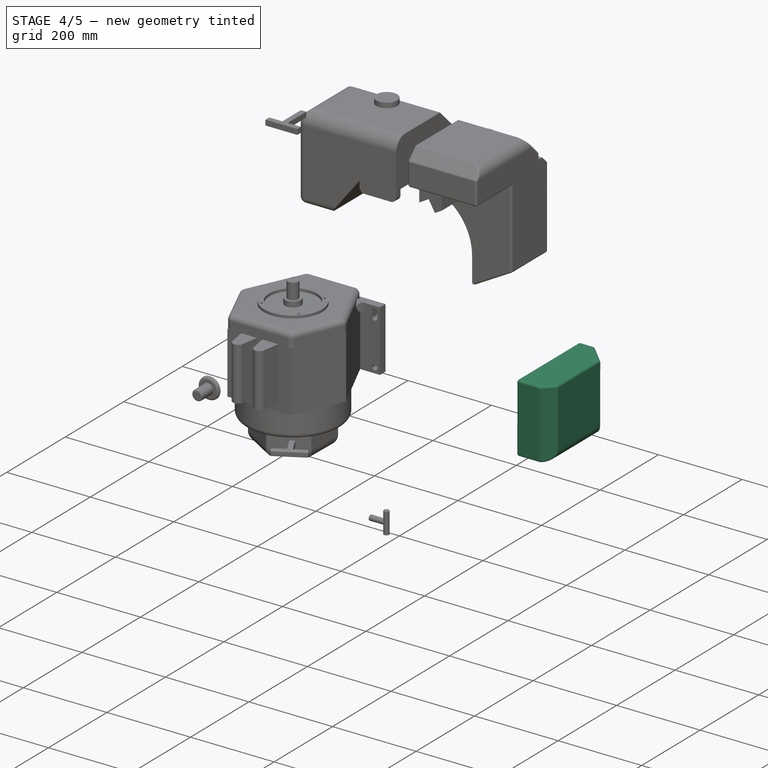
[diagram: stage 4 of 5 — iso view after this stage's code; geometry added in this stage tinted green]
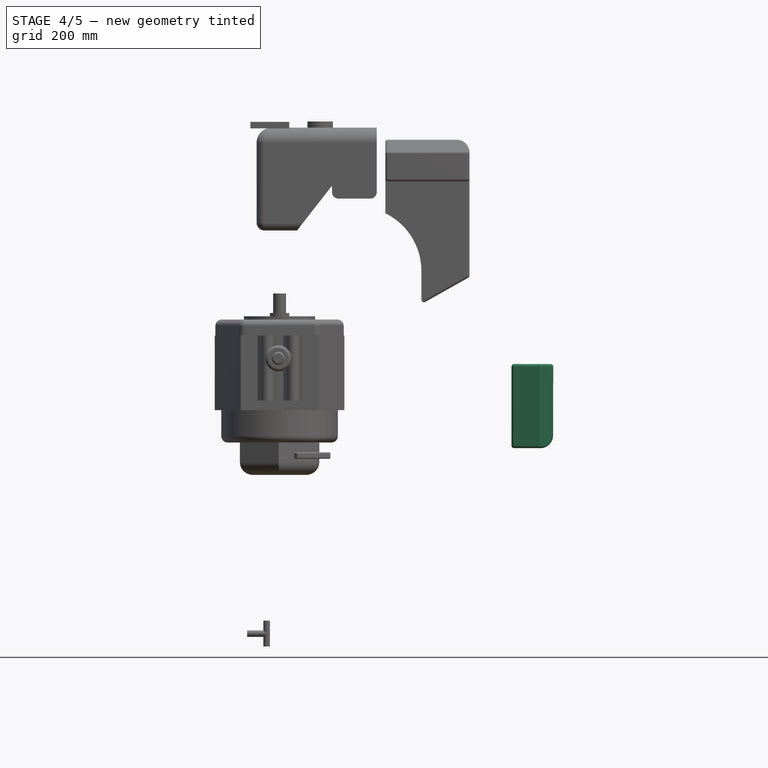
[diagram: stage 4 of 5 — front view after this stage's code; geometry added in this stage tinted green]
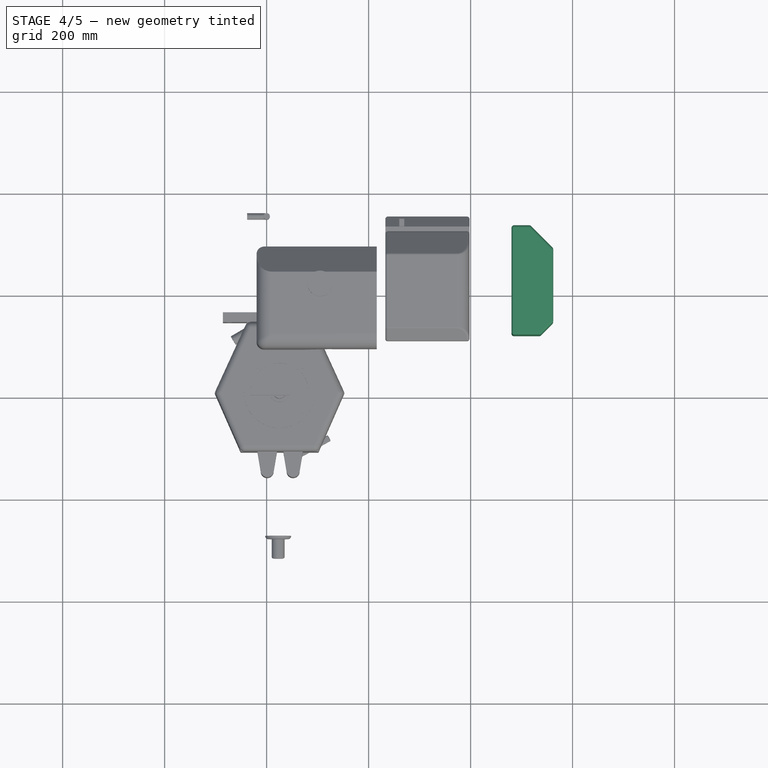
[diagram: stage 4 of 5 — top view after this stage's code; geometry added in this stage tinted green]
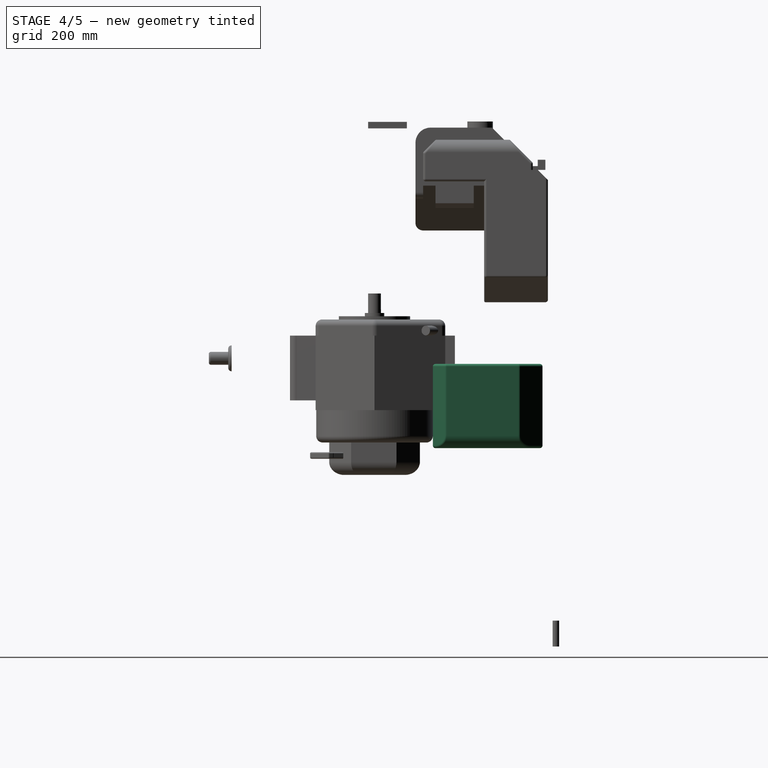
[diagram: stage 4 of 5 — right view after this stage's code; geometry added in this stage tinted green]
FEATURE [PartDesign::Fillet] Fillet
  Placement = pos=(177.8,0,-0.0881322) rot=(0.707107,0.707107,-0.000408;3.14241rad)
  Radius = 10
FEATURE [Sketcher::SketchObject] Sketch008
  Placement = pos=(235.985,0,-0.155298) rot=(-0.577128,-0.577128,0.577795;2.09373rad)
  Support = -> Fillet [Face6]
  sketch-geometry (8):
    g0: LineSegment StartX=-127.779 StartY=68.4149 StartZ=0 EndX=-169.294 EndY=112.898 EndZ=0
    g1: LineSegment StartX=-127.779 StartY=68.4149 StartZ=0 EndX=-169.294 EndY=112.898 EndZ=0
    g2: LineSegment StartX=-58.8782 StartY=113.2 StartZ=0 EndX=-82.6759 EndY=169.199 EndZ=0
    g3: LineSegment StartX=-58.8781 StartY=113.2 StartZ=0 EndX=-103.09 EndY=155.004 EndZ=0
    g4: LineSegment StartX=-58.8782 StartY=113.2 StartZ=0 EndX=-58.8781 EndY=113.2 EndZ=0
    g5: LineSegment StartX=-127.779 StartY=68.4149 StartZ=0 EndX=-127.779 EndY=68.4149 EndZ=0
    g6: ArcOfCircle CenterX=-178.579 CenterY=104.232 CenterZ=0 NormalX=0 NormalY=0 NormalZ=1 Radius=12.7 StartAngle=0.750909 EndAngle=7.03409
    g7: ArcOfCircle CenterX=-94.3643 CenterY=164.232 CenterZ=0 NormalX=0 NormalY=0 NormalZ=1 Radius=12.7 StartAngle=3.95497 EndAngle=6.68503
FEATURE [PartDesign::Pad] Pad005  label="Fuel Tank Mounting Points"
  Length = 127
  Length2 = 100
  Placement = pos=(177.8,0,-0.0881322) rot=(0.707107,0.707107,-0.000408;3.14241rad)
  Reversed = true
  Sketch = -> Sketch008
  Type = 0
FEATURE [Sketcher::SketchObject] Sketch011
  Placement = pos=(177.8,114.3,-0.0881322) rot=(0.000408,-0.707107,0.707107;3.14078rad)
  Support = -> Pad005 [Face6]
  sketch-geometry (4):
    g0: LineSegment StartX=-384.278 StartY=55 StartZ=0 EndX=-302.556 EndY=55 EndZ=0
    g1: LineSegment StartX=-302.556 StartY=55 StartZ=0 EndX=-302.556 EndY=220 EndZ=0
    g2: LineSegment StartX=-384.278 StartY=220 StartZ=0 EndX=-384.278 EndY=55 EndZ=0
    g3: LineSegment StartX=-384.278 StartY=220 StartZ=0 EndX=-302.556 EndY=220 EndZ=0
  constraints (12):
    c: Coincident(g0,g1)
    c: Coincident(g2,g0)
    c: Horizontal(g0)
    c: Vertical(g1)
    c: Vertical(g2)
    c: Coincident(g3,g2)
    c: Horizontal(g3)
    c: Coincident(g3,g1)
    c: DistanceY(g2,g2) = 165
    c: DistanceX(g3,g3) = 81.7224
    c: DistanceX(g1,g-1) = 302.556
    c: DistanceY(g-1,g0) = 55
FEATURE [PartDesign::Pad] Pad007  label="Cylinder Head Cover"
  Length = 215
  Length2 = 100
  Placement = pos=(177.8,0,-0.0881322) rot=(0.707107,0.707107,-0.000408;3.14241rad)
  Reversed = true
  Sketch = -> Sketch011
  Type = 0
FEATURE [PartDesign::Chamfer] Chamfer001  label="Cylinder Head Cover Chamfer1"
  Base = -> Pad007 [Edge12]
  Placement = pos=(177.8,0,-0.0881322) rot=(0.707107,0.707107,-0.000408;3.14241rad)
  Size = 45
FEATURE [PartDesign::Chamfer] Chamfer002  label="Cylinder Head Cover Chamfer2"
  Base = -> Chamfer001 [Edge8]
  Placement = pos=(177.8,0,-0.0881322) rot=(0.707107,0.707107,-0.000408;3.14241rad)
  Size = 25
FEATURE [PartDesign::Fillet] Fillet003  label="Cylinder Head Cover Big Fillet"
  Base = -> Chamfer002 [Edge7]
  Placement = pos=(177.8,0,-0.0881322) rot=(0.707107,0.707107,-0.000408;3.14241rad)
  Radius = 25
FEATURE [PartDesign::Fillet] Fillet004  label="Cylinder Head Cover Fillets"
  Base = -> Fillet003 [Edge17,Edge7,Edge5,Edge1,Edge9,Edge14,Edge18,Edge15,Edge10,Edge12,Edge4,Edge3,Edge6,Edge11,Edge16,Edge19,Edge20,Edge13]
  Placement = pos=(177.8,0,-0.0881322) rot=(0.707107,0.707107,-0.000408;3.14241rad)
  Radius = 5
FEATURE [Sketcher::SketchObject] Sketch014
  Placement = pos=(0,215,0) rot=(1,0,0;1.5708rad)
  sketch-geometry (6):
    g0: LineSegment StartX=397.8 StartY=325 StartZ=0 EndX=232.8 EndY=325 EndZ=0
    g1: LineSegment StartX=397.8 StartY=325 StartZ=0 EndX=397.8 EndY=115 EndZ=0
    g2: LineSegment StartX=397.8 StartY=115 StartZ=0 EndX=303.474 EndY=62 EndZ=0
    g3: LineSegment StartX=303.474 StartY=62 StartZ=0 EndX=303.474 EndY=127 EndZ=0
    g4: LineSegment StartX=232.8 StartY=325 StartZ=0 EndX=232.8 EndY=240 EndZ=0
    g5: ArcOfCircle CenterX=177.8 CenterY=127 CenterZ=0 NormalX=0 NormalY=0 NormalZ=1 Radius=125.674 StartAngle=6.28319 EndAngle=7.40101
  constraints (19):
    c: Horizontal(g0)
    c: Vertical(g1)
    c: Coincident(g1,g2)
    c: Coincident(g2,g3)
    c: Vertical(g3)
    c: Vertical(g4)
    c: Coincident(g0,g4)
    c: Coincident(g3,g5)
    c: Coincident(g4,g5)
    c: Distance(g1) = 210
    c: Distance(g4) = 85
    c: Tangent(g5,g3)
    c: Coincident(g0,g1)
    c: DistanceX(g-1,g0) = 232.8
    c: DistanceY(g-1,g0) = 325
    c: DistanceX(g5) = 177.8
    c: DistanceY(g5) = 127
    c: Distance(g0) = 165
    c: Distance(g3) = 65
FEATURE [PartDesign::Pad] Pad010  label="Air Filter"
  Length = 125
  Length2 = 100
  Placement = pos=(0,215,0) rot=(1,0,0;1.5708rad)
  Reversed = true
  Sketch = -> Sketch014
  Type = 0
FEATURE [PartDesign::Chamfer] Chamfer003
  Base = -> Pad010 [Edge4]
  Placement = pos=(0,215,0) rot=(1,0,0;1.5708rad)
  Size = 20
FEATURE [PartDesign::Fillet] Fillet007  label="Air Filter with Fillets"
  Base = -> Chamfer003 [Edge7,Edge8,Edge19,Edge18,Edge17,Edge15,Edge6,Edge14,Edge20]
  Placement = pos=(0,215,0) rot=(1,0,0;1.5708rad)
  Radius = 5
FEATURE [Sketcher::SketchObject] Sketch016
  Placement = pos=(0,157,0) rot=(1,0,0;1.5708rad)
  sketch-geometry (6):
    g0: LineSegment StartX=243.774 StartY=263.019 StartZ=0 EndX=266.447 EndY=276.109 EndZ=0
    g1: LineSegment StartX=266.447 StartY=276.109 StartZ=0 EndX=281.381 EndY=250.244 EndZ=0
    g2: LineSegment StartX=281.381 StartY=250.244 StartZ=0 EndX=297.844 EndY=259.75 EndZ=0
    g3: LineSegment StartX=297.844 StartY=259.75 StartZ=0 EndX=297.844 EndY=317.038 EndZ=0
    g4: LineSegment StartX=297.844 StartY=317.038 StartZ=0 EndX=243.774 EndY=317.038 EndZ=0
    g5: LineSegment StartX=243.774 StartY=317.038 StartZ=0 EndX=243.774 EndY=263.019 EndZ=0
  constraints (18):
    c: Coincident(g0,g1)
    c: Coincident(g1,g2)
    c: Coincident(g2,g3)
    c: Vertical(g3)
    c: Coincident(g3,g4)
    c: Horizontal(g4)
    c: Coincident(g4,g5)
    c: Coincident(g5,g0)
    c: Vertical(g5)
    c: Perpendicular(g0,g1)
    c: Perpendicular(g1,g2)
    c: DistanceX(g0) = 243.774
    c: DistanceY(g0) = 263.019
    c: DistanceX(g1) = 281.381
    c: DistanceY(g1) = 250.244
    c: DistanceX(g3) = 297.844
    c: DistanceY(g3) = 317.038
    c: Angle(g0,g5) = 1.0472
FEATURE [PartDesign::Pad] Pad011  label="Muffler"
  Length = 75
  Length2 = 100
  Midplane = true
  Placement = pos=(0,157,0) rot=(1,0,0;1.5708rad)
  Sketch = -> Sketch016
  Type = 0
FEATURE [Sketcher::SketchObject] Sketch017
  Placement = pos=(0,0,405) rot=(0,0,1;0rad)
  sketch-geometry (1):
    g0: Circle CenterX=105 CenterY=207 CenterZ=0 NormalX=0 NormalY=0 NormalZ=1 Radius=25
  constraints (3):
    c: DistanceX(g0) = 105
    c: DistanceY(g0) = 207
    c: Radius(g0) = 25
FEATURE [PartDesign::Pad] Pad012  label="Gas Cap"
  Length = 15
  Length2 = 100
  Placement = pos=(0,0,405) rot=(0,0,1;0rad)
  Sketch = -> Sketch017
  Type = 0
FEATURE [Part::Feature] Compound001  label="Gas tank"
  shape: bbox 235.7 x 200 x 213.7 mm, 37 faces, 2 solids (baked)
FEATURE [Part::Compound] Compound002
  Links = -> [Fillet004,Pad013,Pad011,Fillet007]
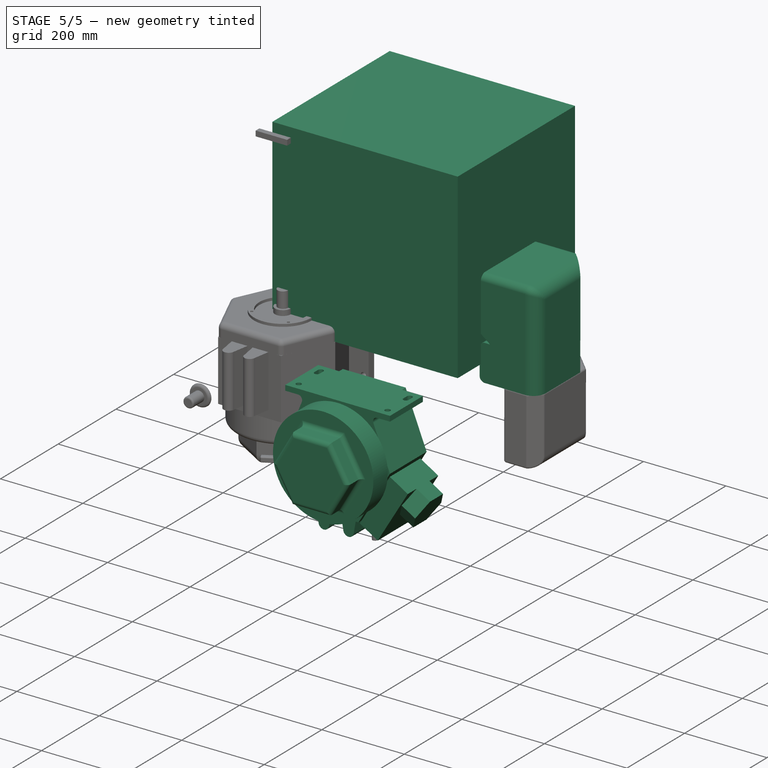
[diagram: stage 5 of 5 — iso view after this stage's code; geometry added in this stage tinted green]
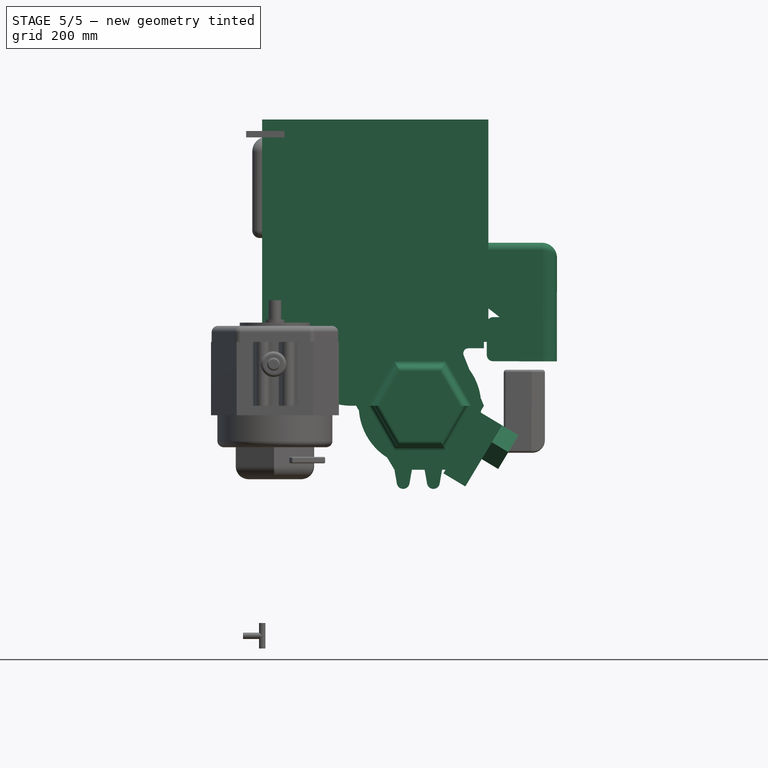
[diagram: stage 5 of 5 — front view after this stage's code; geometry added in this stage tinted green]
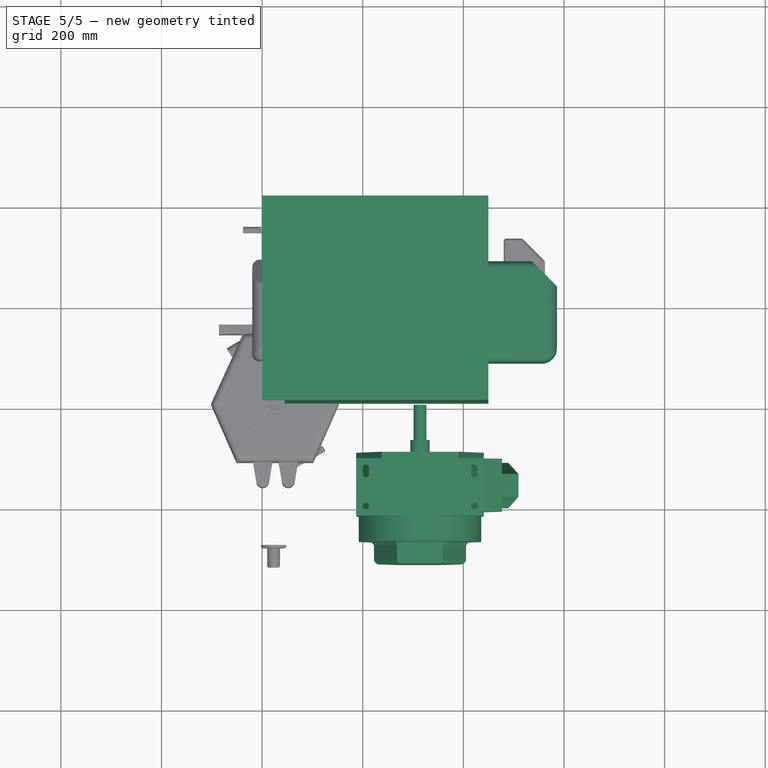
[diagram: stage 5 of 5 — top view after this stage's code; geometry added in this stage tinted green]
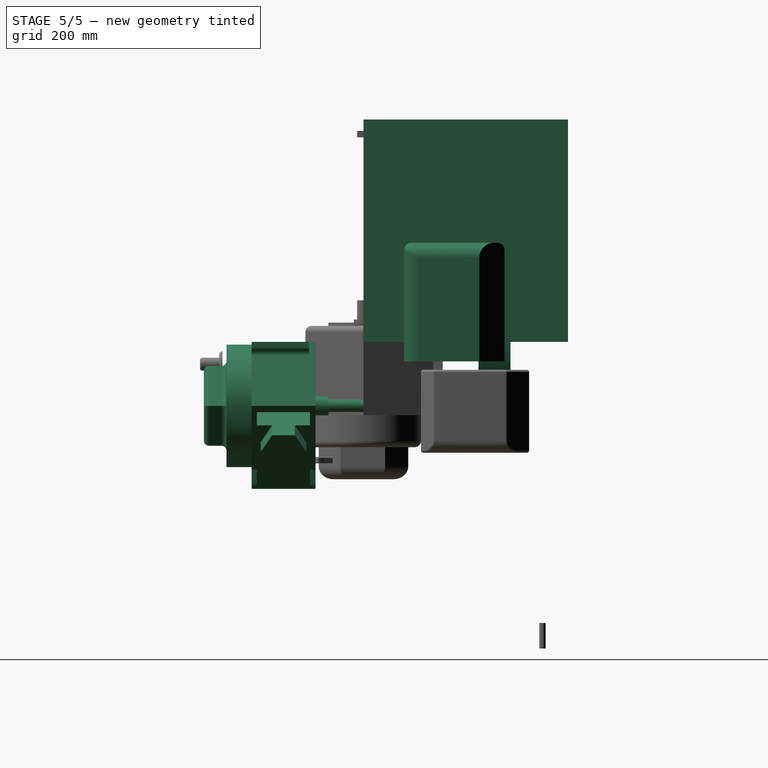
[diagram: stage 5 of 5 — right view after this stage's code; geometry added in this stage tinted green]
FEATURE [Part::Box] Box  label="Bounding Box for Reference"
  Height = 441.96
  Length = 449.58
  Width = 406.4
FEATURE [Sketcher::SketchObject] Sketch003
  Placement = pos=(272.058,0,-54.17) rot=(0.654439,0.654439,0.378709;2.41756rad)
  sketch-geometry (4):
    g0: LineSegment StartX=106.203 StartY=58.1855 StartZ=0 EndX=211.822 EndY=58.1855 EndZ=0
    g1: LineSegment StartX=211.822 StartY=58.1855 StartZ=0 EndX=211.822 EndY=199.938 EndZ=0
    g2: LineSegment StartX=211.822 StartY=199.938 StartZ=0 EndX=106.203 EndY=199.938 EndZ=0
    g3: LineSegment StartX=106.203 StartY=199.938 StartZ=0 EndX=106.203 EndY=58.1855 EndZ=0
  constraints (8):
    c: Coincident(g0,g1)
    c: Coincident(g1,g2)
    c: Coincident(g2,g3)
    c: Coincident(g3,g0)
    c: Horizontal(g0)
    c: Horizontal(g2)
    c: Vertical(g1)
    c: Vertical(g3)
FEATURE [PartDesign::Pad] Pad001  label="Cylinder Head"
  Length = 50.8
  Length2 = 100
  Placement = pos=(272.058,0,-54.17) rot=(0.654439,0.654439,0.378709;2.41756rad)
  Sketch = -> Sketch003
  Type = 0
FEATURE [Sketcher::SketchObject] Sketch004
  sketch-geometry (8):
    g0: LineSegment StartX=136.407 StartY=136.494 StartZ=0 EndX=113.801 EndY=97.3398 EndZ=0
    g1: LineSegment StartX=113.801 StartY=97.3398 StartZ=0 EndX=136.407 EndY=58.1855 EndZ=0
    g2: LineSegment StartX=136.407 StartY=58.1855 StartZ=0 EndX=181.618 EndY=58.1855 EndZ=0
    g3: LineSegment StartX=181.618 StartY=58.1855 StartZ=0 EndX=204.224 EndY=97.3398 EndZ=0
    g4: LineSegment StartX=204.224 StartY=97.3398 StartZ=0 EndX=181.618 EndY=136.494 EndZ=0
    g5: LineSegment StartX=181.618 StartY=136.494 StartZ=0 EndX=136.407 EndY=136.494 EndZ=0
    g6: Circle [constr] CenterX=159.013 CenterY=97.3398 CenterZ=0 NormalX=0 NormalY=0 NormalZ=1 Radius=45.2115
    g7: LineSegment [constr] StartX=159.013 StartY=97.3398 StartZ=0 EndX=159.013 EndY=58.1855 EndZ=0
  constraints (15):
    c: Coincident(g0,g1)
    c: Coincident(g1,g2)
    c: Coincident(g2,g3)
    c: Coincident(g3,g4)
    c: Coincident(g4,g5)
    c: Coincident(g5,g0)
    c: Equal(g0, g1-g5) x5
    c: PointOnObject(g0,g6)
    c: PointOnObject(g1,g6)
    c: PointOnObject(g2,g6)
    c: PointOnObject(g3,g6)
    c: PointOnObject(g4,g6)
    c: PointOnObject(g5,g6)
    c: Coincident(g7,g6)
    c: Vertical(g7)
FEATURE [PartDesign::Pad] Pad002  label="Cylinder Head Cap"
  Length = 38.1
  Length2 = 100
  Sketch = -> Sketch004
  Type = 0
FEATURE [Sketcher::SketchObject] Sketch007
  Placement = pos=(235.985,0,-0.155298) rot=(-0.577128,-0.577128,0.577795;2.09373rad)
  Support = -> Fillet [Face6]
  sketch-geometry (6):
    g0: LineSegment StartX=-294.09 StartY=38.2524 StartZ=0 EndX=-407.991 EndY=38.2524 EndZ=0
    g1: LineSegment StartX=-407.991 StartY=38.2524 StartZ=0 EndX=-407.991 EndY=-197.433 EndZ=0
    g2: LineSegment StartX=-407.991 StartY=-197.433 StartZ=0 EndX=-206.301 EndY=-197.433 EndZ=0
    g3: LineSegment StartX=-294.09 StartY=-49.5369 StartZ=0 EndX=-294.09 EndY=38.2524 EndZ=0
    g4: LineSegment StartX=-206.301 StartY=-118.085 StartZ=0 EndX=-206.301 EndY=-197.433 EndZ=0
    g5: LineSegment StartX=-294.09 StartY=-49.5369 StartZ=0 EndX=-206.301 EndY=-118.085 EndZ=0
  constraints (11):
    c: Coincident(g0,g1)
    c: Coincident(g1,g2)
    c: Horizontal(g0)
    c: Horizontal(g2)
    c: Vertical(g1)
    c: Coincident(g3,g0)
    c: Vertical(g3)
    c: Vertical(g4)
    c: Coincident(g4,g2)
    c: Coincident(g5,g3)
    c: Coincident(g5,g4)
FEATURE [PartDesign::Pad] Pad004  label="Fuel Tank Main Body"
  Length = 15
  Length2 = 175
  Placement = pos=(177.8,0,-0.0881322) rot=(0.707107,0.707107,-0.000408;3.14241rad)
  Reversed = true
  Sketch = -> Sketch007
  Type = 4
FEATURE [Sketcher::SketchObject] Sketch009
  ExternalGeometry = -> [Pad004]
  Placement = pos=(251.412,127.5,-0.173105) rot=(-0.18577,-0.694691,0.694906;2.77269rad)
  Support = -> Pad004 [Face8]
  sketch-geometry (6):
    g0: LineSegment StartX=-50.0039 StartY=12.6597 StartZ=0 EndX=-37.304 EndY=12.6597 EndZ=0
    g1: LineSegment StartX=-24.6039 StartY=-0.0403178 StartZ=0 EndX=-24.6039 EndY=25.4 EndZ=0
    g2: LineSegment StartX=-50.0039 StartY=38.1 StartZ=0 EndX=-37.304 EndY=38.1 EndZ=0
    g3: ArcOfCircle CenterX=-37.3039 CenterY=-0.0403425 CenterZ=0 NormalX=0 NormalY=0 NormalZ=1 Radius=12.7 StartAngle=1.5708 EndAngle=6.28319
    g4: ArcOfCircle CenterX=-37.3039 CenterY=25.4 CenterZ=0 NormalX=0 NormalY=0 NormalZ=1 Radius=12.7 StartAngle=6.28318 EndAngle=7.85399
    g5: LineSegment StartX=-50.0039 StartY=12.6597 StartZ=0 EndX=-50.0039 EndY=38.1 EndZ=0
  constraints (18):
    c: Coincident(g0,g-3)
    c: Vertical(g1)
    c: Coincident(g2,g-3)
    c: Coincident(g2,g4)
    c: Coincident(g1,g4)
    c: Coincident(g1,g3)
    c: Coincident(g0,g3)
    c: Tangent(g4,g1)
    c: Tangent(g2,g4)
    c: Tangent(g3,g1)
    c: Tangent(g0,g3)
    c: Equal(g3,g4)
    c: DistanceX(g2,g1) = 25.4
    c: Horizontal(g0)
    c: Radius(g3) = 12.7
    c: Coincident(g5,g0)
    c: Coincident(g2,g5)
    c: Horizontal(g2)
FEATURE [PartDesign::Pad] Pad006  label="Fuel Tank Mounting Tab"
  Length = 157
  Length2 = 100
  Placement = pos=(177.8,0,-0.0881322) rot=(0.707107,0.707107,-0.000408;3.14241rad)
  Reversed = true
  Sketch = -> Sketch009
  Type = 0
FEATURE [Sketcher::SketchObject] Sketch010
  ExternalGeometry = -> [Pad006]
  Placement = pos=(177.785,0.0147952,-12.9052) rot=(0.001154,0,0.999999;1.5708rad)
  Support = -> Pad006 [Face2]
  sketch-geometry (4):
    g0: LineSegment StartX=41.248 StartY=92.671 StartZ=0 EndX=111.872 EndY=92.671 EndZ=0
    g1: LineSegment StartX=111.872 StartY=92.671 StartZ=0 EndX=111.872 EndY=-98667.6 EndZ=0
    g2: LineSegment StartX=111.872 StartY=-98667.6 StartZ=0 EndX=41.248 EndY=-98667.6 EndZ=0
    g3: LineSegment StartX=41.248 StartY=-98667.6 StartZ=0 EndX=41.248 EndY=92.671 EndZ=0
FEATURE [PartDesign::Pocket] Pocket002  label="Trim Fuel Tank Mounting Tabs"
  Length = 0
  Midplane = true
  Placement = pos=(177.8,0,-0.0881322) rot=(0.707107,0.707107,-0.000408;3.14241rad)
  Sketch = -> Sketch010
  Type = 3
  UpToFace = -> Pad006 [Face10]
FEATURE [PartDesign::Chamfer] Chamfer  label="Gas Tank Large Chamfer"
  Base = -> Pocket002 [Edge2]
  Placement = pos=(177.8,0,-0.0881322) rot=(0.707107,0.707107,-0.000408;3.14241rad)
  Size = 50
FEATURE [PartDesign::Fillet] Fillet001  label="Soften Edge with Fillet"
  Base = -> Chamfer [Edge18,Edge27]
  Placement = pos=(177.8,0,-0.0881322) rot=(0.707107,0.707107,-0.000408;3.14241rad)
  Radius = 30
FEATURE [PartDesign::Fillet] Fillet002  label="Gas Tank with Fillets"
  Base = -> Fillet001 [Edge25,Edge23,Edge38,Edge21,Edge19]
  Placement = pos=(177.8,0,-0.0881322) rot=(0.707107,0.707107,-0.000408;3.14241rad)
  Radius = 15
FEATURE [Sketcher::SketchObject] Sketch012
  Placement = pos=(177.8,228.6,-0.0881322) rot=(-1,0.000577,0.000577;1.5708rad)
  sketch-geometry (1):
    g0: Circle CenterX=0 CenterY=0 CenterZ=0 NormalX=0 NormalY=0 NormalZ=1 Radius=127
  constraints (2):
    c: Radius(g0) = 127
    c: Coincident(g0,g-1)
FEATURE [PartDesign::Pad] Pad008  label="Crank Case and Cover"
  Length = 63.5
  Length2 = 100
  Placement = pos=(177.8,228.6,-0.0881322) rot=(-1,0.000577,0.000577;1.5708rad)
  Sketch = -> Sketch012
  Type = 0
FEATURE [PartDesign::Fillet] Fillet005
  Base = -> Pad009 [Edge197,Edge203,Edge193,Edge195,Edge199,Edge201]
  Placement = pos=(313.893,0,-0.245229) rot=(0.577572,-0.577572,0.576906;4.18812rad)
  Radius = 10
FEATURE [PartDesign::Fillet] Fillet006  label="CrankCase"
  Base = -> Fillet005 [Edge7,Edge3,Edge15,Edge14,Edge13,Edge12]
  Placement = pos=(313.893,0,-0.245229) rot=(0.577572,-0.577572,0.576906;4.18812rad)
  Radius = 10
FEATURE [Part::Compound] Compound
  Links = -> [Pad012,Fillet002]
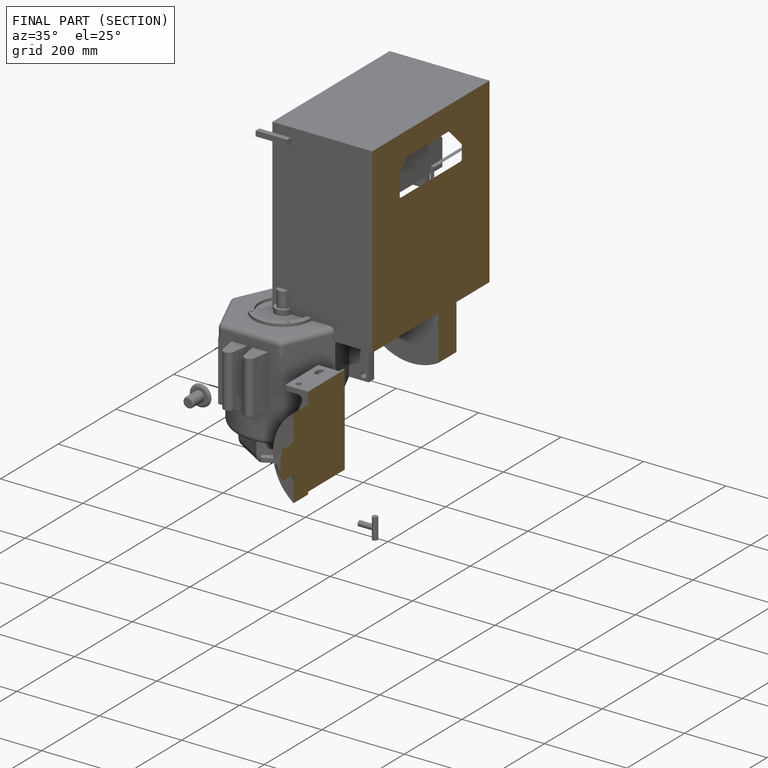
[diagram: finished part — half-section view (interior)]
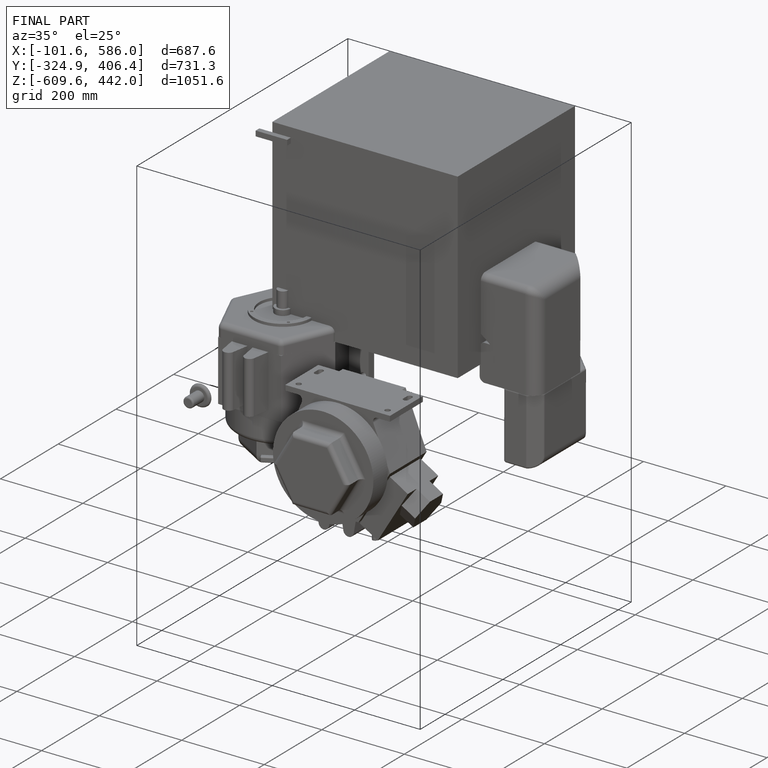
[diagram: finished part — iso view with bounding-box wireframe]
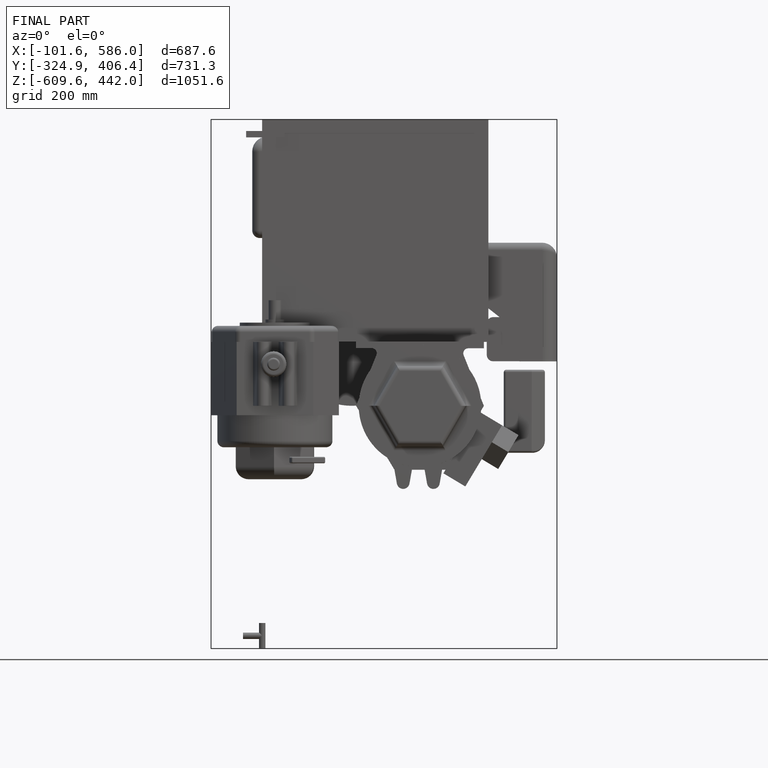
[diagram: finished part — front view with bounding-box wireframe]
